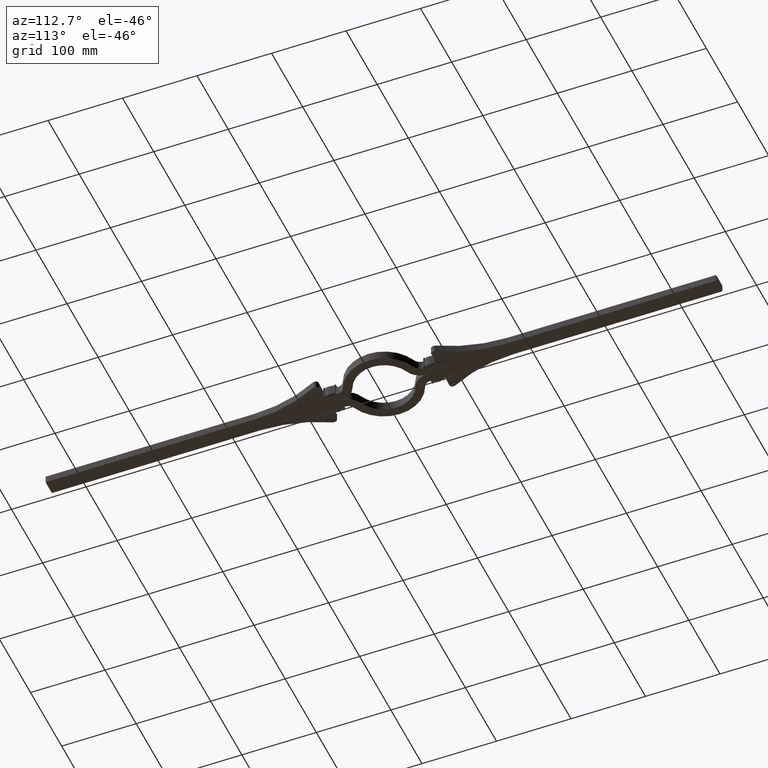
[diagram: clean part render]
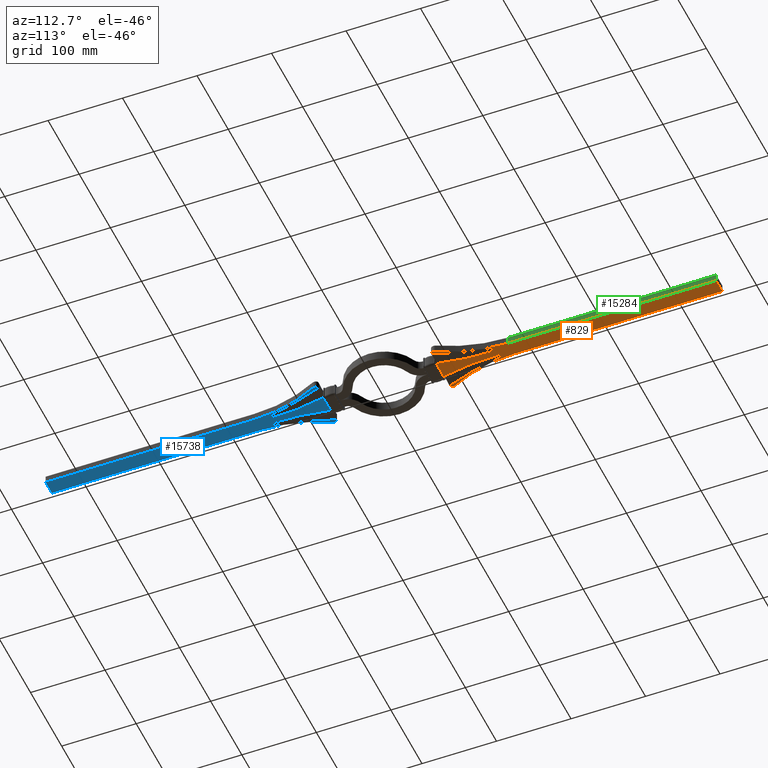
[diagram: same view with three faces highlighted in distinct colors, each labeled with its STEP entity id]
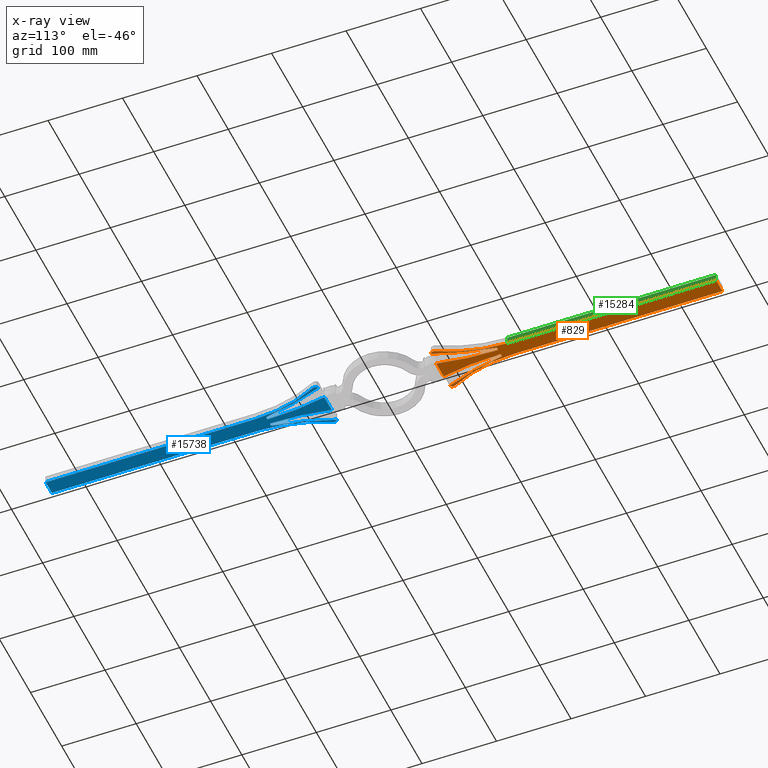
[diagram: x-ray of the same camera — body ghosted, the three highlighted faces saturated]
A machine part, auxiliary view with three faces highlighted in distinct colors.
The next image is the same camera in x-ray (body ghosted, the three faces saturated) — at least one of them is partly hidden behind the body in this view.
Their STEP definitions:

[orange] entity #829 — the highlighted planar face has unit normal (-0, 0, -1).
#43 = EDGE_CURVE ( 'NONE', #9369, #14784, #4226, .T. ) ;
#99 = B_SPLINE_CURVE_WITH_KNOTS ( 'NONE', 3,
 ( #22680, #9443, #13227, #1965, #3835, #2130, #15191, #5721, #18908, #4258, #21219, #15602, #23083, #523, #10002, #4175, #17251, #8034, #19235, #11895, #9921, #286, #4338, #11741, #5977, #7958, #15447, #21135, #7873, #608, #19154, #11820, #22927, #2524, #13705, #2287, #17339 ),
 .UNSPECIFIED., .F., .F.,
 ( 4, 1, 1, 2, 2, 1, 1, 2, 2, 1, 1, 2, 2, 1, 2, 2, 2, 2, 1, 1, 2, 2, 4 ),
 ( 0.000000000000000000, 0.1249999999999968359, 0.1562499999999963640, 0.1640624999999959754, 0.1718749999999955869, 0.1874999999999942824, 0.2187499999999916733, 0.2343749999999897304, 0.2499999999999878431, 0.3124999999999844569, 0.3437499999999832911, 0.3593749999999827360, 0.3749999999999821809, 0.4374999999999900080, 0.4687499999999939493, 0.4999999999999978906, 0.5625000000000202061, 0.6250000000000422995, 0.6875000000000645040, 0.7187500000000763833, 0.7343750000000823785, 0.7500000000000882627, 1.000000000000000000 ),
 .UNSPECIFIED. ) ;
#161 = CARTESIAN_POINT ( 'NONE',  ( 7.040899818233783414, 154.9950052233772908, -5.000000000000000888 ) ) ;
#238 = CARTESIAN_POINT ( 'NONE',  ( 4.892755534377799975, 154.9768825606714131, -5.000000000000000000 ) ) ;
#239 = CARTESIAN_POINT ( 'NONE',  ( 7.576437800769569186, 154.9272596164399829, -5.000000000000000000 ) ) ;
#286 = CARTESIAN_POINT ( 'NONE',  ( -7.708952536469569239, 154.8837657022506846, -4.999999999999999112 ) ) ;
#304 = CARTESIAN_POINT ( 'NONE',  ( -5.524881609996840304, 155.0000000000000000, -5.000000000000000000 ) ) ;
#364 = EDGE_CURVE ( 'NONE', #15178, #13784, #7526, .T. ) ;
#404 = CARTESIAN_POINT ( 'NONE',  ( 7.750923387391965846, 154.8668430428191698, -4.999999999999999112 ) ) ;
#405 = CARTESIAN_POINT ( 'NONE',  ( 21.90836770854217264, 97.96535711074012909, -4.999999999999999112 ) ) ;
#476 = CARTESIAN_POINT ( 'NONE',  ( 3.950210554126884155, 154.4160855845792071, -4.999999999999999112 ) ) ;
#483 = CARTESIAN_POINT ( 'NONE',  ( 15.33893144924324581, 120.7736479703853973, -5.000000000000000000 ) ) ;
#494 = CARTESIAN_POINT ( 'NONE',  ( 9.999999999999998224, 450.0000000000000000, -5.000000000000000000 ) ) ;
#523 = CARTESIAN_POINT ( 'NONE',  ( -7.307366801111482069, 154.9765360763337867, -4.999999999999999112 ) ) ;
#608 = CARTESIAN_POINT ( 'NONE',  ( -8.089659345965188209, 154.6100510210172558, -5.000000000000000000 ) ) ;
#767 = EDGE_CURVE ( 'NONE', #23644, #3494, #99, .T. ) ;
#829 = ADVANCED_FACE ( 'NONE', ( #5098 ), #4417, .T. ) ;
#903 = CARTESIAN_POINT ( 'NONE',  ( -3.887158504766637712, 154.2334561765726164, -5.000000000000000888 ) ) ;
#986 = VECTOR ( 'NONE', #9973, 1000.000000000000000 ) ;
#990 = CARTESIAN_POINT ( 'NONE',  ( -4.923330507334865658, 154.9795228441532799, -5.000000000000000000 ) ) ;
#1153 = CARTESIAN_POINT ( 'NONE',  ( -4.373972640302226544, 154.8467176374575729, -4.999999999999999112 ) ) ;
#1202 = CARTESIAN_POINT ( 'NONE',  ( -9.672070074790740435, 147.3002641839133844, -5.000000000000004441 ) ) ;
#1234 = CARTESIAN_POINT ( 'NONE',  ( -4.489648340402005111, 154.8953516681904432, -5.000000000000000888 ) ) ;
#1317 = CARTESIAN_POINT ( 'NONE',  ( 196.2500000000003695, 170.0000000000000000, -5.000000000000000000 ) ) ;
#1394 = DIRECTION ( 'NONE',  ( 0.000000000000000000, 0.000000000000000000, 1.000000000000000000 ) ) ;
#1549 = VERTEX_POINT ( 'NONE', #7709 ) ;
#1689 = CARTESIAN_POINT ( 'NONE',  ( -4.066255453019092414, 140.6514932845108490, -5.000000000000000000 ) ) ;
#1965 = CARTESIAN_POINT ( 'NONE',  ( -7.040710738677680602, 154.9950089992586015, -4.999999999999999112 ) ) ;
#2043 = ORIENTED_EDGE ( 'NONE', *, *, #43, .F. ) ;
#2072 = CARTESIAN_POINT ( 'NONE',  ( 4.291517554339579377, 154.8085952374379985, -5.000000000000000000 ) ) ;
#2130 = CARTESIAN_POINT ( 'NONE',  ( -7.072717474823241091, 154.9936684795427198, -4.999999999999999112 ) ) ;
#2159 = CARTESIAN_POINT ( 'NONE',  ( 5.401662129824939207, 155.0000000000001421, -4.999999999999999112 ) ) ;
#2165 = CARTESIAN_POINT ( 'NONE',  ( 7.929550128683751531, 154.7640946517927318, -5.000000000000000000 ) ) ;
#2225 = CARTESIAN_POINT ( 'NONE',  ( 29.90578352800346096, 75.61682699219079495, -4.999999999999999112 ) ) ;
#2239 = CARTESIAN_POINT ( 'NONE',  ( 4.697303896635835585, 154.9480590363553461, -5.000000000000000000 ) ) ;
#2242 = CARTESIAN_POINT ( 'NONE',  ( 8.190079004866349877, 154.4603655763447421, -4.999999999999998224 ) ) ;
#2285 = ORIENTED_EDGE ( 'NONE', *, *, #21810, .T. ) ;
#2287 = CARTESIAN_POINT ( 'NONE',  ( -8.331045514131831808, 154.1555962923812899, -4.999999999999999112 ) ) ;
#2322 = CARTESIAN_POINT ( 'NONE',  ( 8.132525867774781148, 154.5523416721544834, -5.000000000000000000 ) ) ;
#2375 = EDGE_CURVE ( 'NONE', #8821, #5946, #7974, .T. ) ;
#2400 = CARTESIAN_POINT ( 'NONE',  ( 3.887841840071709854, 154.2328798549666544, -5.000000000000000000 ) ) ;
#2524 = CARTESIAN_POINT ( 'NONE',  ( -8.177099160317748527, 154.4823493684897358, -4.999999999999999112 ) ) ;
#2609 = DIRECTION ( 'NONE',  ( -1.000000000000000000, 0.000000000000000000, 0.000000000000000000 ) ) ;
#2797 = CARTESIAN_POINT ( 'NONE',  ( -3.950894594920300484, 154.4156030487170312, -5.000000000000000888 ) ) ;
#2823 = B_SPLINE_CURVE_WITH_KNOTS ( 'NONE', 3,
 ( #13070, #6817, #7480, #21883, #3115, #14804, #3523, #24276, #5809, #15111, #9840, #21224, #1202, #21785 ),
 .UNSPECIFIED., .F., .F.,
 ( 4, 2, 2, 2, 2, 2, 4 ),
 ( 0.0006630706660943519633, 0.01083704939437183344, 0.02101102812264931535, 0.04135898557920428265, 0.05153296430748174894, 0.06170694303575920830, 0.08205490049231420335 ),
 .UNSPECIFIED. ) ;
#3001 = ORIENTED_EDGE ( 'NONE', *, *, #22093, .F. ) ;
#3043 = ORIENTED_EDGE ( 'NONE', *, *, #19518, .F. ) ;
#3115 = CARTESIAN_POINT ( 'NONE',  ( -24.05351161474452226, 91.52952734822630987, -5.000000000000000000 ) ) ;
#3494 = VERTEX_POINT ( 'NONE', #5953 ) ;
#3523 = CARTESIAN_POINT ( 'NONE',  ( -18.84312696506621521, 107.6664397898857430, -5.000000000000001776 ) ) ;
#3689 = CARTESIAN_POINT ( 'NONE',  ( 5.095105768261104728, 120.8115987610864011, -4.999999999999999112 ) ) ;
#3744 = EDGE_LOOP ( 'NONE', ( #3043, #23509, #20680, #21716, #4333, #17308, #2285, #22861, #21714, #9871, #3001, #10290, #17573, #2043, #10226, #7892, #23810, #16181, #8507, #23801 ) ) ;
#3755 = EDGE_CURVE ( 'NONE', #14716, #3494, #2823, .T. ) ;
#3835 = CARTESIAN_POINT ( 'NONE',  ( -7.063657707383821815, 154.9940581115708653, -5.000000000000000000 ) ) ;
#3863 = CARTESIAN_POINT ( 'NONE',  ( 10.65409518942570344, 81.48561295397708193, -4.999999999999999112 ) ) ;
#3869 = CARTESIAN_POINT ( 'NONE',  ( 8.350559475307663959, 154.0555712443143932, -5.000000000000000888 ) ) ;
#3913 = DIRECTION ( 'NONE',  ( -1.362997016838919825E-16, -1.000000000000000000, 0.000000000000000000 ) ) ;
#3941 = DIRECTION ( 'NONE',  ( -1.000000000000000000, 0.000000000000000000, 0.000000000000000000 ) ) ;
#3942 = LINE ( 'NONE', #5390, #15759 ) ;
#3959 = CARTESIAN_POINT ( 'NONE',  ( 7.306898842722150178, 154.9761397729472492, -5.000000000000000000 ) ) ;
#4037 = CARTESIAN_POINT ( 'NONE',  ( 4.534892171477465261, 154.9098943820313536, -5.000000000000000000 ) ) ;
#4040 = CARTESIAN_POINT ( 'NONE',  ( 7.072893912738012823, 154.9936636895074287, -5.000000000000000888 ) ) ;
#4175 = CARTESIAN_POINT ( 'NONE',  ( -7.457000456572593805, 154.9543196795643780, -4.999999999999999112 ) ) ;
#4207 = CARTESIAN_POINT ( 'NONE',  ( 4.977114643288120810, 154.9841644563494185, -4.999999999999998224 ) ) ;
#4213 = CARTESIAN_POINT ( 'NONE',  ( 7.611289036946746300, 154.9177036749475462, -5.000000000000000000 ) ) ;
#4214 = CARTESIAN_POINT ( 'NONE',  ( 16.17173924047758149, 117.4858902119328405, -4.999999999999998224 ) ) ;
#4226 = LINE ( 'NONE', #494, #986 ) ;
#4258 = CARTESIAN_POINT ( 'NONE',  ( -7.179975064563933529, 154.9877161332718458, -4.999999999999999112 ) ) ;
#4290 = CARTESIAN_POINT ( 'NONE',  ( 4.950226401179041780, 154.9819418975789063, -4.999999999999999112 ) ) ;
#4296 = CARTESIAN_POINT ( 'NONE',  ( 8.369846276100519233, 153.9566048082363068, -5.000000000000008882 ) ) ;
#4313 = CARTESIAN_POINT ( 'NONE',  ( -27.50000000000000000, 75.00000000000000000, -5.000000000000000000 ) ) ;
#4333 = ORIENTED_EDGE ( 'NONE', *, *, #19108, .F. ) ;
#4338 = CARTESIAN_POINT ( 'NONE',  ( -7.749808035746163171, 154.8665676258486599, -5.000000000000000888 ) ) ;
#4417 = PLANE ( 'NONE',  #9499 ) ;
#4689 = CARTESIAN_POINT ( 'NONE',  ( -4.361279476627038854, 154.8405941119106615, -5.000000000000000000 ) ) ;
#4695 = CARTESIAN_POINT ( 'NONE',  ( -3.850100905404020502, 153.8959823417442863, -5.000000000000000888 ) ) ;
#4852 = CARTESIAN_POINT ( 'NONE',  ( -3.849387639408194062, 153.9453619701153286, -4.999999999999999112 ) ) ;
#4858 = CARTESIAN_POINT ( 'NONE',  ( 0.04999999999999449329, 75.00000000000000000, -5.000000000000000000 ) ) ;
#4938 = CARTESIAN_POINT ( 'NONE',  ( 31.91176470588233371, 82.35294117647066514, -5.000000000000000000 ) ) ;
#5098 = FACE_OUTER_BOUND ( 'NONE', #3744, .T. ) ;
#5110 = CARTESIAN_POINT ( 'NONE',  ( -29.90578352800347162, 75.61682699219078074, -5.000000000000000888 ) ) ;
#5338 = DIRECTION ( 'NONE',  ( 1.000000000000000000, 0.000000000000000000, 0.000000000000000000 ) ) ;
#5390 = CARTESIAN_POINT ( 'NONE',  ( -9.999999999999998224, 450.0000000000000000, -5.000000000000000000 ) ) ;
#5536 = CARTESIAN_POINT ( 'NONE',  ( -6.383709020612283069, 107.6285635025731722, -5.000000000000001776 ) ) ;
#5563 = EDGE_CURVE ( 'NONE', #8209, #5946, #16077, .T. ) ;
#5615 = CARTESIAN_POINT ( 'NONE',  ( -10.65418433786297570, 81.48515731125172579, -5.000000000000000888 ) ) ;
#5721 = CARTESIAN_POINT ( 'NONE',  ( -7.097308017255702595, 154.9925326577647979, -5.000000000000000000 ) ) ;
#5754 = CARTESIAN_POINT ( 'NONE',  ( 7.871353795394450792, 154.8018180168101878, -5.000000000000000000 ) ) ;
#5765 = CARTESIAN_POINT ( 'NONE',  ( -3.941527048187003057, 147.2738071475867798, -5.000000000000000000 ) ) ;
#5809 = CARTESIAN_POINT ( 'NONE',  ( -15.33948274099760312, 120.7713924187462169, -4.999999999999999112 ) ) ;
#5841 = CARTESIAN_POINT ( 'NONE',  ( 4.961300469331250795, 154.9828828458228429, -5.000000000000000000 ) ) ;
#5845 = CARTESIAN_POINT ( 'NONE',  ( 7.425242568076760641, 154.9605887789916494, -4.999999999999999112 ) ) ;
#5946 = VERTEX_POINT ( 'NONE', #4858 ) ;
#5953 = CARTESIAN_POINT ( 'NONE',  ( -8.369848107278119898, 153.9566044169022803, -5.000000000001072031 ) ) ;
#5977 = CARTESIAN_POINT ( 'NONE',  ( -7.831067647579728508, 154.8267907529933041, -4.999999999999999112 ) ) ;
#6005 = CARTESIAN_POINT ( 'NONE',  ( 4.954640374059568586, 154.9823200777343857, -5.000000000000001776 ) ) ;
#6009 = CARTESIAN_POINT ( 'NONE',  ( 7.079084775424544951, 154.9933880636783101, -5.000000000000000000 ) ) ;
#6041 = VECTOR ( 'NONE', #7680, 1000.000000000000000 ) ;
#6084 = CARTESIAN_POINT ( 'NONE',  ( 4.424823562497149254, 154.8692188332266255, -5.000000000000000000 ) ) ;
#6089 = CARTESIAN_POINT ( 'NONE',  ( 25.16573548742239552, 88.32679024580768612, -5.000000000000001776 ) ) ;
#6161 = CARTESIAN_POINT ( 'NONE',  ( 3.941525041940246776, 147.2739525226938611, -5.000000000000005329 ) ) ;
#6170 = CARTESIAN_POINT ( 'NONE',  ( 29.90578352800346096, 75.61682699219079495, -4.999999999999999112 ) ) ;
#6297 = CARTESIAN_POINT ( 'NONE',  ( -196.2500000000003695, 170.0000000000000000, -5.000000000000000000 ) ) ;
#6320 = B_SPLINE_CURVE_WITH_KNOTS ( 'NONE', 3,
 ( #11539, #3869, #15223, #13585, #7913, #21004, #17041, #2242, #9798, #2322, #22962, #11697, #7989, #2165, #5754, #15478, #21173, #404, #17286, #4213, #239, #19113, #17123, #7827, #5845, #9874, #3959, #9719, #19026, #23043, #17375, #13501, #6009, #4040, #22882, #161, #11455, #15316, #13332 ),
 .UNSPECIFIED., .F., .F.,
 ( 4, 1, 1, 1, 2, 2, 2, 2, 1, 2, 2, 1, 1, 2, 2, 1, 1, 2, 2, 1, 2, 2, 1, 1, 4 ),
 ( 0.000000000000000000, 0.1249999999999778788, 0.1874999999999664158, 0.2187499999999601430, 0.2343749999999390765, 0.2499999999999179823, 0.3124999999998947509, 0.3749999999998714917, 0.4374999999998481770, 0.4687499999998375744, 0.4999999999998269162, 0.5624999999998212541, 0.5937499999998191447, 0.6093749999998235856, 0.6249999999998280265, 0.6874999999998651079, 0.7187499999998865352, 0.7343749999998945288, 0.7499999999999025224, 0.8124999999999230615, 0.8281249999999293898, 0.8359374999999326095, 0.8437499999999357181, 0.8749999999999480416, 1.000000000000000000 ),
 .UNSPECIFIED. ) ;
#6461 = EDGE_CURVE ( 'NONE', #14784, #10589, #3942, .T. ) ;
#6574 = CARTESIAN_POINT ( 'NONE',  ( -3.852224591100758655, 154.0183417871604661, -5.000000000000000000 ) ) ;
#6746 = CARTESIAN_POINT ( 'NONE',  ( -4.701792468876149655, 154.9495630242740845, -4.999999999999999112 ) ) ;
#6817 = CARTESIAN_POINT ( 'NONE',  ( -28.66465570946260399, 78.77288482228303224, -4.999999999999997335 ) ) ;
#6829 = CARTESIAN_POINT ( 'NONE',  ( -4.306078688689413347, 154.8116730214752010, -5.000000000000000888 ) ) ;
#6835 = VERTEX_POINT ( 'NONE', #2225 ) ;
#6877 = AXIS2_PLACEMENT_3D ( 'NONE', #21181, #22889, #7838 ) ;
#7354 = EDGE_CURVE ( 'NONE', #10589, #10451, #23981, .T. ) ;
#7357 = CARTESIAN_POINT ( 'NONE',  ( -9.435335345138769370, 87.99476971494958377, -5.000000000000000888 ) ) ;
#7476 = CARTESIAN_POINT ( 'NONE',  ( -196.2500000000003695, 154.9999999999999716, -5.000000000000000000 ) ) ;
#7480 = CARTESIAN_POINT ( 'NONE',  ( -27.47195298213860681, 81.94771300081052345, -5.000000000000003553 ) ) ;
#7514 = CARTESIAN_POINT ( 'NONE',  ( -8.866273401780516039, 91.25713509913484245, -4.999999999999997335 ) ) ;
#7526 = B_SPLINE_CURVE_WITH_KNOTS ( 'NONE', 3,
 ( #7985, #2159, #17120, #11695, #11768, #4207, #5841, #6005, #4290, #13582, #238, #13414, #9870, #2239, #15399, #18942, #19186, #19110, #4037, #21084, #6084, #17442, #7659, #2072, #15312, #21169, #23039, #11537, #11450, #476, #13655, #7740, #2400, #20829, #19022, #9549, #15556 ),
 .UNSPECIFIED., .F., .F.,
 ( 4, 1, 1, 1, 1, 1, 2, 2, 1, 1, 1, 2, 2, 1, 1, 2, 2, 1, 1, 2, 2, 1, 2, 2, 4 ),
 ( 0.000000000000000000, 0.1249999999999064915, 0.1874999999998597233, 0.2187499999998352151, 0.2343749999998220868, 0.2421874999998155364, 0.2460937499998129829, 0.2499999999998104572, 0.3124999999998064326, 0.3437499999998044342, 0.3593749999998067102, 0.3671874999998078759, 0.3749999999998089861, 0.4374999999998064326, 0.4687499999997991051, 0.4843749999997954969, 0.4999999999997918332, 0.6249999999997818412, 0.6874999999997764011, 0.7187499999997885025, 0.7499999999998006039, 0.8124999999998239186, 0.8437499999998354649, 0.8749999999998469002, 1.000000000000000000 ),
 .UNSPECIFIED. ) ;
#7618 = CARTESIAN_POINT ( 'NONE',  ( -9.999999999999998224, 450.0000000000000000, -5.000000000000000000 ) ) ;
#7659 = CARTESIAN_POINT ( 'NONE',  ( 4.394963218379221992, 154.8564157422302685, -5.000000000000000888 ) ) ;
#7680 = DIRECTION ( 'NONE',  ( 1.000000000000000000, 0.000000000000000000, 0.000000000000000000 ) ) ;
#7693 = CARTESIAN_POINT ( 'NONE',  ( 3.850103109058593098, 153.8959823276776433, -5.000000000014686918 ) ) ;
#7709 = CARTESIAN_POINT ( 'NONE',  ( -11.99556631910429694, 74.99999999999995737, -4.999999999999997335 ) ) ;
#7740 = CARTESIAN_POINT ( 'NONE',  ( 3.900880505724209080, 154.2806662280909222, -5.000000000000001776 ) ) ;
#7827 = CARTESIAN_POINT ( 'NONE',  ( 7.489098946799971124, 154.9483752531161826, -5.000000000000001776 ) ) ;
#7838 = DIRECTION ( 'NONE',  ( 1.000000000000000000, 0.000000000000000000, 0.000000000000000000 ) ) ;
#7841 = EDGE_CURVE ( 'NONE', #18963, #14716, #16891, .T. ) ;
#7873 = CARTESIAN_POINT ( 'NONE',  ( -8.044891118720279621, 154.6599510496792789, -5.000000000000000000 ) ) ;
#7892 = ORIENTED_EDGE ( 'NONE', *, *, #22830, .F. ) ;
#7913 = CARTESIAN_POINT ( 'NONE',  ( 8.219940837847360626, 154.4060487012270357, -4.999999999999999112 ) ) ;
#7958 = CARTESIAN_POINT ( 'NONE',  ( -7.870881565983294692, 154.8031225917745530, -5.000000000000000000 ) ) ;
#7974 = LINE ( 'NONE', #11200, #11521 ) ;
#7985 = CARTESIAN_POINT ( 'NONE',  ( 5.524884413910802650, 155.0000000000000000, -5.000000000000000000 ) ) ;
#7989 = CARTESIAN_POINT ( 'NONE',  ( 7.982266187990555650, 154.7204992681236320, -5.000000000000000000 ) ) ;
#8034 = CARTESIAN_POINT ( 'NONE',  ( -7.509167489440847554, 154.9436147647253108, -5.000000000000000888 ) ) ;
#8068 = CARTESIAN_POINT ( 'NONE',  ( 24.05310280816991053, 91.53070942115883213, -4.999999999999999112 ) ) ;
#8209 = VERTEX_POINT ( 'NONE', #16701 ) ;
#8211 = B_SPLINE_CURVE_WITH_KNOTS ( 'NONE', 3,
 ( #20081, #4852, #6574, #16236, #23859, #12260, #903, #8648, #18183, #2797, #21732, #15974, #14150, #12499, #6829, #10539, #4689, #1153, #18098, #1234, #20000, #8483, #21647, #21971, #14396, #6746, #10448, #21896, #12425, #990, #23704, #10619, #23628, #10370, #23534, #19844 ),
 .UNSPECIFIED., .F., .F.,
 ( 4, 1, 2, 2, 1, 2, 2, 1, 1, 1, 2, 2, 1, 1, 1, 2, 2, 1, 1, 1, 1, 2, 2, 4 ),
 ( 0.000000000000000000, 0.06250000000000716094, 0.09375000000001071365, 0.1250000000000142664, 0.1875000000000213718, 0.2187500000000249245, 0.2500000000000284772, 0.3750000000000426881, 0.4375000000000371925, 0.4687500000000244249, 0.4843750000000180966, 0.5000000000000116573, 0.5625000000000002220, 0.5937499999999996669, 0.6093750000000042188, 0.6171875000000104361, 0.6250000000000166533, 0.6875000000000182077, 0.7187500000000170974, 0.7343750000000150990, 0.7421875000000129896, 0.7460937500000124345, 0.7500000000000118794, 1.000000000000000000 ),
 .UNSPECIFIED. ) ;
#8483 = CARTESIAN_POINT ( 'NONE',  ( -4.615485542775151551, 154.9305361709761826, -4.999999999999999112 ) ) ;
#8507 = ORIENTED_EDGE ( 'NONE', *, *, #23652, .T. ) ;
#8648 = CARTESIAN_POINT ( 'NONE',  ( -3.906718705263800384, 154.3051456392302327, -4.999999999999999112 ) ) ;
#8821 = VERTEX_POINT ( 'NONE', #9427 ) ;
#8864 = VERTEX_POINT ( 'NONE', #4695 ) ;
#9350 = CARTESIAN_POINT ( 'NONE',  ( 10.00000000000003730, 169.9999999999999716, -5.000000000000000000 ) ) ;
#9369 = VERTEX_POINT ( 'NONE', #9350 ) ;
#9427 = CARTESIAN_POINT ( 'NONE',  ( 11.99556631910429338, 74.99999999999998579, -4.999999999999999112 ) ) ;
#9443 = CARTESIAN_POINT ( 'NONE',  ( -6.816542032269317986, 155.0000000000000853, -4.999999999999998224 ) ) ;
#9499 = AXIS2_PLACEMENT_3D ( 'NONE', #6297, #23326, #12052 ) ;
#9549 = CARTESIAN_POINT ( 'NONE',  ( 3.848712076518045588, 153.9947300474512986, -5.000000000000000000 ) ) ;
#9628 = CARTESIAN_POINT ( 'NONE',  ( 3.850103109058593098, 153.8959823276776433, -5.000000000014686918 ) ) ;
#9719 = CARTESIAN_POINT ( 'NONE',  ( 7.282159346196274363, 154.9788182286728784, -5.000000000000000000 ) ) ;
#9790 = CARTESIAN_POINT ( 'NONE',  ( 4.066234519047399409, 140.6522609387502882, -4.999999999999999112 ) ) ;
#9798 = CARTESIAN_POINT ( 'NONE',  ( 8.159022788575056140, 154.5130916506290077, -5.000000000000000000 ) ) ;
#9799 = CARTESIAN_POINT ( 'NONE',  ( 17.95218768660829056, 110.9412039952580500, -5.000000000000000888 ) ) ;
#9840 = CARTESIAN_POINT ( 'NONE',  ( -13.04686545112673990, 130.6835287712365812, -5.000000000000006217 ) ) ;
#9870 = CARTESIAN_POINT ( 'NONE',  ( 4.736075384499168983, 154.9552602184181467, -4.999999999999999112 ) ) ;
#9871 = ORIENTED_EDGE ( 'NONE', *, *, #7841, .F. ) ;
#9874 = CARTESIAN_POINT ( 'NONE',  ( 7.343489981968272851, 154.9719131814239859, -5.000000000000000888 ) ) ;
#9921 = CARTESIAN_POINT ( 'NONE',  ( -7.645866024125226978, 154.9080606686533770, -5.000000000000000888 ) ) ;
#9973 = DIRECTION ( 'NONE',  ( -1.362997016838919825E-16, 1.000000000000000000, -0.000000000000000000 ) ) ;
#10002 = CARTESIAN_POINT ( 'NONE',  ( -7.379812184047170653, 154.9676398535170279, -4.999999999999999112 ) ) ;
#10226 = ORIENTED_EDGE ( 'NONE', *, *, #17571, .F. ) ;
#10290 = ORIENTED_EDGE ( 'NONE', *, *, #7354, .F. ) ;
#10370 = CARTESIAN_POINT ( 'NONE',  ( -5.086463813540461842, 154.9938781205851228, -5.000000000000000888 ) ) ;
#10448 = CARTESIAN_POINT ( 'NONE',  ( -4.769171599191096789, 154.9614452236558577, -4.999999999999999112 ) ) ;
#10451 = VERTEX_POINT ( 'NONE', #18017 ) ;
#10539 = CARTESIAN_POINT ( 'NONE',  ( -4.338980454192871150, 154.8292424760705899, -5.000000000000000000 ) ) ;
#10589 = VERTEX_POINT ( 'NONE', #22047 ) ;
#10619 = CARTESIAN_POINT ( 'NONE',  ( -4.939930174933718554, 154.9810436870729120, -5.000000000000001776 ) ) ;
#10852 = DIRECTION ( 'NONE',  ( -1.000000000000000000, 1.224646799147353207E-16, 0.000000000000000000 ) ) ;
#11131 = CARTESIAN_POINT ( 'NONE',  ( 6.383646118891760146, 107.6290770696313928, -5.000000000000000000 ) ) ;
#11200 = CARTESIAN_POINT ( 'NONE',  ( -196.2500000000003695, 75.00000000000000000, -5.000000000000000000 ) ) ;
#11206 = CARTESIAN_POINT ( 'NONE',  ( 11.30261319452706203, 78.23812444994119630, -5.000000000000000000 ) ) ;
#11450 = CARTESIAN_POINT ( 'NONE',  ( 3.982025414339872338, 154.4782374288043627, -4.999999999999999112 ) ) ;
#11455 = CARTESIAN_POINT ( 'NONE',  ( 6.938287923075308505, 154.9985145645732700, -5.000000000000000000 ) ) ;
#11521 = VECTOR ( 'NONE', #3941, 1000.000000000000000 ) ;
#11537 = CARTESIAN_POINT ( 'NONE',  ( 3.994846812575005401, 154.5011420639815185, -4.999999999999999112 ) ) ;
#11539 = CARTESIAN_POINT ( 'NONE',  ( 8.369846276100519233, 153.9566048082363068, -5.000000000000008882 ) ) ;
#11543 = CIRCLE ( 'NONE', #21886, 186.2500000000003126 ) ;
#11621 = CARTESIAN_POINT ( 'NONE',  ( 10.94604281159742598, 140.6385494445007396, -5.000000000000047962 ) ) ;
#11695 = CARTESIAN_POINT ( 'NONE',  ( 5.079670333403198512, 154.9909716991470248, -5.000000000000000888 ) ) ;
#11697 = CARTESIAN_POINT ( 'NONE',  ( 8.047682912415172751, 154.6571525177632509, -5.000000000000000000 ) ) ;
#11701 = CARTESIAN_POINT ( 'NONE',  ( 20.87496697803197065, 101.1957694271446542, -4.999999999999998224 ) ) ;
#11705 = CIRCLE ( 'NONE', #17409, 186.2500000000003126 ) ;
#11741 = CARTESIAN_POINT ( 'NONE',  ( -7.767756583600059272, 154.8584057253728474, -4.999999999999999112 ) ) ;
#11768 = CARTESIAN_POINT ( 'NONE',  ( 5.009838797826586365, 154.9866016173510559, -4.999999999999999112 ) ) ;
#11820 = CARTESIAN_POINT ( 'NONE',  ( -8.157103106869030285, 154.5143419207929014, -5.000000000000000888 ) ) ;
#11845 = CARTESIAN_POINT ( 'NONE',  ( 4.474168272099457333, 130.7263188611593137, -5.000000000000000000 ) ) ;
#11895 = CARTESIAN_POINT ( 'NONE',  ( -7.577369721492570598, 154.9278491904553903, -4.999999999999999112 ) ) ;
#12052 = DIRECTION ( 'NONE',  ( -1.000000000000000000, 0.000000000000000000, 0.000000000000000000 ) ) ;
#12260 = CARTESIAN_POINT ( 'NONE',  ( -3.871683794444002125, 154.1585814098176286, -5.000000000000000000 ) ) ;
#12425 = CARTESIAN_POINT ( 'NONE',  ( -4.900359624242875967, 154.9772935766483215, -4.999999999999998224 ) ) ;
#12499 = CARTESIAN_POINT ( 'NONE',  ( -4.233135279549705920, 154.7668836215720205, -4.999999999999999112 ) ) ;
#12834 = DIRECTION ( 'NONE',  ( -0.000000000000000000, -0.000000000000000000, -1.000000000000000000 ) ) ;
#12885 = DIRECTION ( 'NONE',  ( -1.000000000000000000, -0.000000000000000000, -0.000000000000000000 ) ) ;
#12905 = DIRECTION ( 'NONE',  ( -1.000000000000000000, 0.000000000000000000, 0.000000000000000000 ) ) ;
#13001 = CARTESIAN_POINT ( 'NONE',  ( 9.999999999999998224, 450.0000000000000000, -5.000000000000000000 ) ) ;
#13070 = CARTESIAN_POINT ( 'NONE',  ( -29.90578352800347162, 75.61682699219078074, -5.000000000000000888 ) ) ;
#13106 = CARTESIAN_POINT ( 'NONE',  ( -5.372424258462072721, 117.5107943336468423, -5.000000000000000888 ) ) ;
#13227 = CARTESIAN_POINT ( 'NONE',  ( -6.938084917852560984, 154.9985156875119685, -4.999999999999998224 ) ) ;
#13332 = CARTESIAN_POINT ( 'NONE',  ( 6.704089015590497524, 155.0000000000000000, -5.000000000000000000 ) ) ;
#13414 = CARTESIAN_POINT ( 'NONE',  ( 4.817166454814000076, 154.9682276090294692, -5.000000000000001776 ) ) ;
#13501 = CARTESIAN_POINT ( 'NONE',  ( 7.097544625508486860, 154.9925235955159337, -5.000000000000000888 ) ) ;
#13502 = CARTESIAN_POINT ( 'NONE',  ( 13.04663163384346802, 130.6846088319114756, -5.000000000000047962 ) ) ;
#13535 = CARTESIAN_POINT ( 'NONE',  ( 5.524884413910802650, 155.0000000000000000, -5.000000000000000000 ) ) ;
#13582 = CARTESIAN_POINT ( 'NONE',  ( 4.949170066116401756, 154.9818515061917310, -4.999999999999999112 ) ) ;
#13585 = CARTESIAN_POINT ( 'NONE',  ( 8.253457608034054260, 154.3382894517226305, -5.000000000000000000 ) ) ;
#13616 = CARTESIAN_POINT ( 'NONE',  ( -27.50000000000000000, 75.00000000000000000, -5.000000000000000000 ) ) ;
#13655 = CARTESIAN_POINT ( 'NONE',  ( 3.922481314491955473, 154.3507578352003122, -4.999999999999999112 ) ) ;
#13705 = CARTESIAN_POINT ( 'NONE',  ( -8.268579576320172819, 154.3278125196068515, -4.999999999999999112 ) ) ;
#13784 = VERTEX_POINT ( 'NONE', #7693 ) ;
#13866 = LINE ( 'NONE', #13616, #21535 ) ;
#14150 = CARTESIAN_POINT ( 'NONE',  ( -4.102557969409706295, 154.6621287983768980, -5.000000000000000000 ) ) ;
#14396 = CARTESIAN_POINT ( 'NONE',  ( -4.654509030609471409, 154.9394402328784395, -5.000000000000000888 ) ) ;
#14716 = VERTEX_POINT ( 'NONE', #5110 ) ;
#14784 = VERTEX_POINT ( 'NONE', #13001 ) ;
#14804 = CARTESIAN_POINT ( 'NONE',  ( -20.83678060167407509, 101.1802506365843044, -4.999999999999999112 ) ) ;
#14837 = CARTESIAN_POINT ( 'NONE',  ( -4.474201772049412718, 130.7256328951141313, -5.000000000000000888 ) ) ;
#14877 = VERTEX_POINT ( 'NONE', #304 ) ;
#14896 = CARTESIAN_POINT ( 'NONE',  ( 5.372386887638470832, 117.5112100777879220, -5.000000000000000000 ) ) ;
#14979 = CARTESIAN_POINT ( 'NONE',  ( 9.435256657635720856, 87.99521045099056948, -4.999999999999997335 ) ) ;
#15073 = CARTESIAN_POINT ( 'NONE',  ( -7.282119410401856285, 101.0639367899687073, -4.999999999999998224 ) ) ;
#15110 = VERTEX_POINT ( 'NONE', #20628 ) ;
#15111 = CARTESIAN_POINT ( 'NONE',  ( -13.77831728781949749, 127.3717739044653001, -5.000000000000000000 ) ) ;
#15136 = CARTESIAN_POINT ( 'NONE',  ( 11.99556631910429338, 74.99999999999998579, -4.999999999999999112 ) ) ;
#15178 = VERTEX_POINT ( 'NONE', #13535 ) ;
#15191 = CARTESIAN_POINT ( 'NONE',  ( -7.078893240523878028, 154.9933938590224045, -4.999999999999999112 ) ) ;
#15223 = CARTESIAN_POINT ( 'NONE',  ( 8.312822230249953037, 154.1940794741239529, -5.000000000000000000 ) ) ;
#15312 = CARTESIAN_POINT ( 'NONE',  ( 4.171047678966569805, 154.7275171252331063, -4.999999999999999112 ) ) ;
#15316 = CARTESIAN_POINT ( 'NONE',  ( 6.816671816221102631, 155.0000000000001137, -5.000000000000000888 ) ) ;
#15391 = LINE ( 'NONE', #7476, #16850 ) ;
#15399 = CARTESIAN_POINT ( 'NONE',  ( 4.681067697686012608, 154.9448190683089592, -5.000000000000000000 ) ) ;
#15404 = CARTESIAN_POINT ( 'NONE',  ( 13.77806456301670046, 127.3729176571731756, -4.999999999999999112 ) ) ;
#15447 = CARTESIAN_POINT ( 'NONE',  ( -7.945722487624670372, 154.7506032434060046, -5.000000000000000888 ) ) ;
#15478 = CARTESIAN_POINT ( 'NONE',  ( 7.831338401205473865, 154.8256620337881202, -5.000000000000000000 ) ) ;
#15481 = CARTESIAN_POINT ( 'NONE',  ( 18.89638313458630137, 107.6835423430793810, -5.000000000000001776 ) ) ;
#15556 = CARTESIAN_POINT ( 'NONE',  ( 3.850103109058593098, 153.8959823276776433, -5.000000000014686918 ) ) ;
#15602 = CARTESIAN_POINT ( 'NONE',  ( -7.234992529180952481, 154.9832922700047959, -5.000000000000001776 ) ) ;
#15759 = VECTOR ( 'NONE', #12885, 1000.000000000000000 ) ;
#15974 = CARTESIAN_POINT ( 'NONE',  ( -4.016879431814586177, 154.5463229098289162, -5.000000000000000000 ) ) ;
#16077 = LINE ( 'NONE', #4313, #6041 ) ;
#16181 = ORIENTED_EDGE ( 'NONE', *, *, #17359, .T. ) ;
#16236 = CARTESIAN_POINT ( 'NONE',  ( -3.860846577633067156, 154.0896860594281748, -5.000000000000000000 ) ) ;
#16701 = CARTESIAN_POINT ( 'NONE',  ( -0.04999999999999449329, 75.00000000000000000, -5.000000000000000000 ) ) ;
#16810 = CARTESIAN_POINT ( 'NONE',  ( -11.99556631910429694, 74.99999999999995737, -4.999999999999997335 ) ) ;
#16850 = VECTOR ( 'NONE', #16929, 1000.000000000000000 ) ;
#16875 = CARTESIAN_POINT ( 'NONE',  ( 4.647021768117753915, 127.4192935431086084, -4.999999999999998224 ) ) ;
#16891 = CIRCLE ( 'NONE', #6877, 5.000000000000007994 ) ;
#16929 = DIRECTION ( 'NONE',  ( -1.000000000000000000, -1.224646799147353207E-16, 0.000000000000000000 ) ) ;
#16971 = CARTESIAN_POINT ( 'NONE',  ( -11.30261090894888376, 78.23813513029791977, -5.000000000000001776 ) ) ;
#17041 = CARTESIAN_POINT ( 'NONE',  ( 8.194448244753486321, 154.4526891754441920, -4.999999999999999112 ) ) ;
#17051 = CARTESIAN_POINT ( 'NONE',  ( -3.850100905404020502, 153.8959823417442863, -5.000000000000000888 ) ) ;
#17082 = B_SPLINE_CURVE_WITH_KNOTS ( 'NONE', 3,
 ( #15136, #11206, #3863, #14979, #18941, #22397, #11131, #14896, #3689, #16875, #11845, #9790, #6161, #9628 ),
 .UNSPECIFIED., .F., .F.,
 ( 4, 2, 2, 2, 2, 2, 4 ),
 ( 0.000000000000000000, 0.009934312351862061019, 0.01986862470372412204, 0.03973724940744827877, 0.04967156175931036061, 0.05960587411117240081, 0.07947449881489648815 ),
 .UNSPECIFIED. ) ;
#17120 = CARTESIAN_POINT ( 'NONE',  ( 5.236866310554860959, 154.9976949019100232, -4.999999999999999112 ) ) ;
#17123 = CARTESIAN_POINT ( 'NONE',  ( 7.538858558784522934, 154.9368045953203534, -5.000000000000000888 ) ) ;
#17251 = CARTESIAN_POINT ( 'NONE',  ( -7.488510143176377198, 154.9479807662989970, -4.999999999999999112 ) ) ;
#17286 = CARTESIAN_POINT ( 'NONE',  ( 7.689420039589892397, 154.8927600434799103, -5.000000000000000000 ) ) ;
#17308 = ORIENTED_EDGE ( 'NONE', *, *, #17531, .T. ) ;
#17332 = AXIS2_PLACEMENT_3D ( 'NONE', #22129, #1394, #12905 ) ;
#17339 = CARTESIAN_POINT ( 'NONE',  ( -8.369848107278119898, 153.9566044169022803, -5.000000000001072031 ) ) ;
#17359 = EDGE_CURVE ( 'NONE', #23575, #15110, #6320, .T. ) ;
#17375 = CARTESIAN_POINT ( 'NONE',  ( 7.158215138088412033, 154.9894308716724538, -5.000000000000000000 ) ) ;
#17377 = CARTESIAN_POINT ( 'NONE',  ( 28.66460862937018916, 78.77300454201819946, -5.000000000000000000 ) ) ;
#17409 = AXIS2_PLACEMENT_3D ( 'NONE', #1317, #12834, #5338 ) ;
#17442 = CARTESIAN_POINT ( 'NONE',  ( 4.403886038634817091, 154.8603404236245353, -5.000000000000000000 ) ) ;
#17448 = CARTESIAN_POINT ( 'NONE',  ( 27.47184619622700197, 81.94799728813177353, -5.000000000000000888 ) ) ;
#17531 = EDGE_CURVE ( 'NONE', #8864, #14877, #8211, .T. ) ;
#17543 = VERTEX_POINT ( 'NONE', #4938 ) ;
#17571 = EDGE_CURVE ( 'NONE', #17543, #9369, #11705, .T. ) ;
#17573 = ORIENTED_EDGE ( 'NONE', *, *, #6461, .F. ) ;
#17660 = DIRECTION ( 'NONE',  ( -0.000000000000000000, -0.000000000000000000, -1.000000000000000000 ) ) ;
#18017 = CARTESIAN_POINT ( 'NONE',  ( -10.00000000000006395, 170.0000000000000284, -5.000000000000000000 ) ) ;
#18098 = CARTESIAN_POINT ( 'NONE',  ( -4.424735774836199731, 154.8701481847466255, -4.999999999999999112 ) ) ;
#18183 = CARTESIAN_POINT ( 'NONE',  ( -3.932407141022794761, 154.3720571457417634, -5.000000000000000000 ) ) ;
#18244 = CARTESIAN_POINT ( 'NONE',  ( -6.704073158307038760, 155.0000000000000000, -5.000000000000000000 ) ) ;
#18414 = CARTESIAN_POINT ( 'NONE',  ( 8.369846276100519233, 153.9566048082363068, -5.000000000000008882 ) ) ;
#18496 = CARTESIAN_POINT ( 'NONE',  ( -196.2500000000003695, 155.0000000000000284, -5.000000000000000000 ) ) ;
#18874 = CARTESIAN_POINT ( 'NONE',  ( -5.095152140477097191, 120.8110165528713082, -5.000000000000001776 ) ) ;
#18908 = CARTESIAN_POINT ( 'NONE',  ( -7.133621479544554944, 154.9906843207299971, -5.000000000000000000 ) ) ;
#18941 = CARTESIAN_POINT ( 'NONE',  ( 8.866194273977933804, 91.25759850007079876, -5.000000000000000000 ) ) ;
#18942 = CARTESIAN_POINT ( 'NONE',  ( 4.670328043495365122, 154.9426249235752664, -4.999999999999998224 ) ) ;
#18956 = CARTESIAN_POINT ( 'NONE',  ( -4.647065512257875675, 127.4185468660724609, -5.000000000000001776 ) ) ;
#18963 = VERTEX_POINT ( 'NONE', #21930 ) ;
#19022 = CARTESIAN_POINT ( 'NONE',  ( 3.857636780781668495, 154.0905712758261359, -5.000000000000000888 ) ) ;
#19026 = CARTESIAN_POINT ( 'NONE',  ( 7.267483668783973449, 154.9802891377502192, -5.000000000000000888 ) ) ;
#19108 = EDGE_CURVE ( 'NONE', #8864, #1549, #24341, .T. ) ;
#19110 = CARTESIAN_POINT ( 'NONE',  ( 4.608119561777970219, 154.9293363865682238, -4.999999999999999112 ) ) ;
#19113 = CARTESIAN_POINT ( 'NONE',  ( 7.552899972038384924, 154.9333782027063648, -5.000000000000001776 ) ) ;
#19154 = CARTESIAN_POINT ( 'NONE',  ( -8.137524626313497933, 154.5441998252147187, -4.999999999999998224 ) ) ;
#19186 = CARTESIAN_POINT ( 'NONE',  ( 4.666164550117408716, 154.9417599226900677, -4.999999999999999112 ) ) ;
#19235 = CARTESIAN_POINT ( 'NONE',  ( -7.517284030249613558, 154.9418360449565739, -5.000000000000000888 ) ) ;
#19478 = CARTESIAN_POINT ( 'NONE',  ( -196.2500000000003695, 170.0000000000000000, -5.000000000000000000 ) ) ;
#19518 = EDGE_CURVE ( 'NONE', #8821, #13784, #17082, .T. ) ;
#19844 = CARTESIAN_POINT ( 'NONE',  ( -5.524881609996840304, 155.0000000000000000, -5.000000000000000000 ) ) ;
#20000 = CARTESIAN_POINT ( 'NONE',  ( -4.572374074114293308, 154.9196576789277060, -5.000000000000000888 ) ) ;
#20081 = CARTESIAN_POINT ( 'NONE',  ( -3.850100905404020502, 153.8959823417442863, -5.000000000000000888 ) ) ;
#20628 = CARTESIAN_POINT ( 'NONE',  ( 6.704089015590497524, 155.0000000000000000, -5.000000000000000000 ) ) ;
#20680 = ORIENTED_EDGE ( 'NONE', *, *, #5563, .F. ) ;
#20829 = CARTESIAN_POINT ( 'NONE',  ( 3.881648285689894173, 154.2067390926254120, -5.000000000000000000 ) ) ;
#21004 = CARTESIAN_POINT ( 'NONE',  ( 8.204754837964712166, 154.4341571497372172, -5.000000000000000888 ) ) ;
#21084 = CARTESIAN_POINT ( 'NONE',  ( 4.456750589226309955, 154.8821767864163235, -5.000000000000000888 ) ) ;
#21125 = DIRECTION ( 'NONE',  ( 1.000000000000000000, 0.000000000000000000, 0.000000000000000000 ) ) ;
#21135 = CARTESIAN_POINT ( 'NONE',  ( -7.981874954314436721, 154.7206676626023523, -5.000000000000000000 ) ) ;
#21169 = CARTESIAN_POINT ( 'NONE',  ( 4.061050425221145233, 154.6026204758177869, -5.000000000000000000 ) ) ;
#21173 = CARTESIAN_POINT ( 'NONE',  ( 7.808782679837442231, 154.8379015454135583, -5.000000000000000000 ) ) ;
#21181 = CARTESIAN_POINT ( 'NONE',  ( -27.50000000000000000, 80.00000000000000000, -5.000000000000000000 ) ) ;
#21219 = CARTESIAN_POINT ( 'NONE',  ( -7.213191979804044252, 154.9851121891194623, -5.000000000000000000 ) ) ;
#21224 = CARTESIAN_POINT ( 'NONE',  ( -10.94614558021525852, 140.6380066401361830, -5.000000000000007105 ) ) ;
#21262 = EDGE_CURVE ( 'NONE', #23575, #6835, #24179, .T. ) ;
#21510 = LINE ( 'NONE', #18496, #22102 ) ;
#21535 = VECTOR ( 'NONE', #21125, 1000.000000000000000 ) ;
#21647 = CARTESIAN_POINT ( 'NONE',  ( -4.634336586873630814, 154.9349252718569119, -4.999999999999999112 ) ) ;
#21714 = ORIENTED_EDGE ( 'NONE', *, *, #3755, .F. ) ;
#21716 = ORIENTED_EDGE ( 'NONE', *, *, #23820, .F. ) ;
#21732 = CARTESIAN_POINT ( 'NONE',  ( -3.960061134427707685, 154.4353646470973729, -5.000000000000000888 ) ) ;
#21785 = CARTESIAN_POINT ( 'NONE',  ( -8.369848107278119898, 153.9566044169022803, -5.000000000001072031 ) ) ;
#21810 = EDGE_CURVE ( 'NONE', #14877, #23644, #15391, .T. ) ;
#21883 = CARTESIAN_POINT ( 'NONE',  ( -25.16593238273730293, 88.32623454036757948, -5.000000000000001776 ) ) ;
#21886 = AXIS2_PLACEMENT_3D ( 'NONE', #19478, #17660, #2609 ) ;
#21896 = CARTESIAN_POINT ( 'NONE',  ( -4.855366039987437432, 154.9724817919295674, -4.999999999999999112 ) ) ;
#21930 = CARTESIAN_POINT ( 'NONE',  ( -31.91176470588235503, 82.35294117647059409, -5.000000000000000000 ) ) ;
#21971 = CARTESIAN_POINT ( 'NONE',  ( -4.646987216358581918, 154.9377906480003730, -5.000000000000000888 ) ) ;
#22047 = CARTESIAN_POINT ( 'NONE',  ( -9.999999999999998224, 450.0000000000000000, -5.000000000000000000 ) ) ;
#22093 = EDGE_CURVE ( 'NONE', #10451, #18963, #11543, .T. ) ;
#22102 = VECTOR ( 'NONE', #10852, 1000.000000000000000 ) ;
#22129 = CARTESIAN_POINT ( 'NONE',  ( 27.50000000000000000, 80.00000000000000000, -5.000000000000000000 ) ) ;
#22397 = CARTESIAN_POINT ( 'NONE',  ( 7.282036361849510087, 101.0645038022115045, -5.000000000000000000 ) ) ;
#22680 = CARTESIAN_POINT ( 'NONE',  ( -6.704073158307038760, 155.0000000000000000, -5.000000000000000000 ) ) ;
#22830 = EDGE_CURVE ( 'NONE', #6835, #17543, #23289, .T. ) ;
#22861 = ORIENTED_EDGE ( 'NONE', *, *, #767, .T. ) ;
#22882 = CARTESIAN_POINT ( 'NONE',  ( 7.063838066066870702, 154.9940536163069567, -4.999999999999999112 ) ) ;
#22884 = CARTESIAN_POINT ( 'NONE',  ( 9.672024702164090826, 147.3004961135849555, -4.999999999999999112 ) ) ;
#22889 = DIRECTION ( 'NONE',  ( 0.000000000000000000, 0.000000000000000000, 1.000000000000000000 ) ) ;
#22927 = CARTESIAN_POINT ( 'NONE',  ( -8.169947602567768641, 154.4940731037642081, -5.000000000000000000 ) ) ;
#22962 = CARTESIAN_POINT ( 'NONE',  ( 8.076228130639702130, 154.6249800394016631, -4.999999999999999112 ) ) ;
#23039 = CARTESIAN_POINT ( 'NONE',  ( 4.020455373799466159, 154.5425993006734302, -4.999999999999999112 ) ) ;
#23043 = CARTESIAN_POINT ( 'NONE',  ( 7.214574045502533117, 154.9852823313164549, -5.000000000000000888 ) ) ;
#23083 = CARTESIAN_POINT ( 'NONE',  ( -7.243504533950969382, 154.9825490013796809, -5.000000000000000888 ) ) ;
#23289 = CIRCLE ( 'NONE', #17332, 5.000000000000007994 ) ;
#23326 = DIRECTION ( 'NONE',  ( -0.000000000000000000, 0.000000000000000000, -1.000000000000000000 ) ) ;
#23378 = VECTOR ( 'NONE', #3913, 1000.000000000000000 ) ;
#23509 = ORIENTED_EDGE ( 'NONE', *, *, #2375, .T. ) ;
#23534 = CARTESIAN_POINT ( 'NONE',  ( -5.279218533182852724, 155.0000000000000284, -5.000000000000000000 ) ) ;
#23575 = VERTEX_POINT ( 'NONE', #18414 ) ;
#23628 = CARTESIAN_POINT ( 'NONE',  ( -4.944432351656118385, 154.9814430530235256, -5.000000000000000000 ) ) ;
#23644 = VERTEX_POINT ( 'NONE', #18244 ) ;
#23652 = EDGE_CURVE ( 'NONE', #15110, #15178, #21510, .T. ) ;
#23704 = CARTESIAN_POINT ( 'NONE',  ( -4.933276762438041807, 154.9804403963294703, -5.000000000000000000 ) ) ;
#23801 = ORIENTED_EDGE ( 'NONE', *, *, #364, .T. ) ;
#23810 = ORIENTED_EDGE ( 'NONE', *, *, #21262, .F. ) ;
#23820 = EDGE_CURVE ( 'NONE', #1549, #8209, #13866, .T. ) ;
#23859 = CARTESIAN_POINT ( 'NONE',  ( -3.867880131952343703, 154.1368854532116472, -5.000000000000000000 ) ) ;
#23981 = LINE ( 'NONE', #7618, #23378 ) ;
#24179 = B_SPLINE_CURVE_WITH_KNOTS ( 'NONE', 3,
 ( #4296, #22884, #11621, #13502, #15404, #483, #4214, #9799, #15481, #11701, #405, #8068, #6089, #17448, #17377, #6170 ),
 .UNSPECIFIED., .F., .F.,
 ( 4, 2, 2, 2, 2, 2, 2, 4 ),
 ( 0.001063237414856089231, 0.02141010662533577441, 0.03158354123057557222, 0.04175697583581537697, 0.05193041044105517479, 0.06210384504629496566, 0.07227727965153477041, 0.08245071425677455434 ),
 .UNSPECIFIED. ) ;
#24276 = CARTESIAN_POINT ( 'NONE',  ( -16.17235645211792416, 117.4835178080320190, -5.000000000000001776 ) ) ;
#24341 = B_SPLINE_CURVE_WITH_KNOTS ( 'NONE', 3,
 ( #17051, #5765, #1689, #14837, #18956, #18874, #13106, #5536, #15073, #7514, #7357, #5615, #16971, #16810 ),
 .UNSPECIFIED., .F., .F.,
 ( 4, 2, 2, 2, 2, 2, 4 ),
 ( 0.001104118265899110092, 0.02097253910330494284, 0.03090674952200785433, 0.04084095994071081787, 0.06070938077811672412, 0.07064359119681966337, 0.08057780161552259568 ),
 .UNSPECIFIED. ) ;

[blue] entity #15738 — the highlighted planar face has unit normal (0, 0, -1).
#6 = CARTESIAN_POINT ( 'NONE',  ( -196.2500000000003695, -170.0000000000000000, -5.000000000000000000 ) ) ;
#296 = CARTESIAN_POINT ( 'NONE',  ( -196.2500000000003695, -154.9999999999999716, -5.000000000000000000 ) ) ;
#379 = CARTESIAN_POINT ( 'NONE',  ( -10.65418433786297570, -81.48515731125172579, -5.000000000000000888 ) ) ;
#536 = CARTESIAN_POINT ( 'NONE',  ( 8.866194273977933804, -91.25759850007079876, -5.000000000000000000 ) ) ;
#564 = EDGE_LOOP ( 'NONE', ( #24113, #6342, #17708, #23633, #5969, #11602, #18335, #17240, #4378, #12262, #12889, #22574, #21013, #6092, #5269, #21870, #3995, #5751 ) ) ;
#711 = CARTESIAN_POINT ( 'NONE',  ( 3.941525041940246776, -147.2739525226938611, -5.000000000000005329 ) ) ;
#756 = B_SPLINE_CURVE_WITH_KNOTS ( 'NONE', 3,
 ( #1611, #11230, #16896, #24314, #22258, #1690, #3633, #1770, #20682, #16811, #20361, #10995, #10909, #20604, #7358, #16654, #9324, #5379, #22499, #24390, #12874, #20439, #18795, #9407, #18553, #12793, #13107, #1855, #24063, #1527, #14685, #11071, #3563, #16735 ),
 .UNSPECIFIED., .F., .F.,
 ( 4, 2, 2, 2, 2, 2, 2, 2, 2, 1, 2, 2, 2, 2, 1, 2, 2, 4 ),
 ( 0.000000000000000000, 0.1250000000000565104, 0.1875000000000848210, 0.2187500000001168232, 0.2343750000001325884, 0.2500000000001483258, 0.3125000000001203482, 0.3750000000000923706, 0.4375000000000643929, 0.4687500000000603406, 0.4843750000000583422, 0.5000000000000562883, 0.6250000000000293099, 0.6875000000000196509, 0.7187500000000149880, 0.7343750000000131006, 0.7500000000000113243, 1.000000000000000000 ),
 .UNSPECIFIED. ) ;
#817 = CARTESIAN_POINT ( 'NONE',  ( -29.90578352800347162, -75.61682699219078074, -5.000000000000000888 ) ) ;
#841 = CARTESIAN_POINT ( 'NONE',  ( -7.233960466290501046, -154.9833840918687144, -5.000000272274077062 ) ) ;
#910 = CARTESIAN_POINT ( 'NONE',  ( 5.425226360415979165, -155.0000000000001421, -4.999999999957633889 ) ) ;
#1077 = CARTESIAN_POINT ( 'NONE',  ( 5.004685567573647020, -154.9862622701981820, -5.000015164220045882 ) ) ;
#1092 = CARTESIAN_POINT ( 'NONE',  ( -7.243575453143151321, -154.9825423240127975, -5.000000000000002665 ) ) ;
#1129 = VECTOR ( 'NONE', #1543, 1000.000000000000000 ) ;
#1163 = CARTESIAN_POINT ( 'NONE',  ( 4.295241757368644109, -154.8063104155393717, -4.999943225782778278 ) ) ;
#1274 = VERTEX_POINT ( 'NONE', #15964 ) ;
#1278 = CARTESIAN_POINT ( 'NONE',  ( 7.268015396529352579, -154.9802389574731762, -5.000000000000003553 ) ) ;
#1408 = CARTESIAN_POINT ( 'NONE',  ( 20.87496697803197065, -101.1957694271446542, -4.999999999999998224 ) ) ;
#1472 = B_SPLINE_CURVE_WITH_KNOTS ( 'NONE', 3,
 ( #14643, #3519, #18347, #6992, #16693, #5419, #20155, #1484, #18595, #20481, #9206, #10870, #23858, #16544 ),
 .UNSPECIFIED., .F., .F.,
 ( 4, 2, 2, 2, 2, 2, 4 ),
 ( 0.0006630706660943519633, 0.01083704939437183344, 0.02101102812264931535, 0.04135898557920428265, 0.05153296430748174894, 0.06170694303575920830, 0.08205490049231420335 ),
 .UNSPECIFIED. ) ;
#1484 = CARTESIAN_POINT ( 'NONE',  ( -16.17235645211792416, -117.4835178080320190, -5.000000000000001776 ) ) ;
#1527 = CARTESIAN_POINT ( 'NONE',  ( -4.919772183382407071, -154.9792021931840509, -4.999998983669775576 ) ) ;
#1543 = DIRECTION ( 'NONE',  ( -1.000000000000000000, -1.224646799147353207E-16, 0.000000000000000000 ) ) ;
#1611 = CARTESIAN_POINT ( 'NONE',  ( -3.850100905404020502, -153.8959823417442863, -5.000000000000000888 ) ) ;
#1690 = CARTESIAN_POINT ( 'NONE',  ( -3.927294459486254219, -154.3585275621809387, -4.999949172084273918 ) ) ;
#1719 = CARTESIAN_POINT ( 'NONE',  ( -27.50000000000000000, -75.00000000000000000, -5.000000000000000000 ) ) ;
#1770 = CARTESIAN_POINT ( 'NONE',  ( -3.948429208063966023, -154.4094705289122658, -4.999981348631060918 ) ) ;
#1855 = CARTESIAN_POINT ( 'NONE',  ( -4.853888699188070532, -154.9723366668225992, -4.999989232610432488 ) ) ;
#1933 = CARTESIAN_POINT ( 'NONE',  ( 6.896182023123312632, -155.0000000000001421, -5.000000000000000000 ) ) ;
#2215 = CARTESIAN_POINT ( 'NONE',  ( -4.647065512257875675, -127.4185468660724609, -5.000000000000001776 ) ) ;
#2295 = CARTESIAN_POINT ( 'NONE',  ( -11.99556631910429161, -74.99999999999998579, -4.999999999999999112 ) ) ;
#2373 = CARTESIAN_POINT ( 'NONE',  ( -6.383709020612283069, -107.6285635025731722, -5.000000000000001776 ) ) ;
#2656 = CARTESIAN_POINT ( 'NONE',  ( -7.357889261302499762, -154.9717791552320705, -5.000000000000000888 ) ) ;
#2680 = CARTESIAN_POINT ( 'NONE',  ( 7.808739888150444841, -154.8379229500218912, -5.000000000000000000 ) ) ;
#2742 = CARTESIAN_POINT ( 'NONE',  ( -7.166702648854637481, -154.9885777034827186, -4.999995476419701212 ) ) ;
#2768 = AXIS2_PLACEMENT_3D ( 'NONE', #18901, #13372, #7783 ) ;
#2793 = CARTESIAN_POINT ( 'NONE',  ( 8.276616460582133072, -154.2807237659278314, -4.999755788967699566 ) ) ;
#2840 = AXIS2_PLACEMENT_3D ( 'NONE', #24228, #22170, #7431 ) ;
#2888 = CARTESIAN_POINT ( 'NONE',  ( 4.424102133420934280, -154.8689324752005803, -4.999990854886378955 ) ) ;
#2900 = CARTESIAN_POINT ( 'NONE',  ( -7.144163338439162736, -154.9900050189273770, -4.999997463477655835 ) ) ;
#2985 = CARTESIAN_POINT ( 'NONE',  ( -7.830416418857748972, -154.8271159501509828, -5.000000000000000888 ) ) ;
#3048 = CARTESIAN_POINT ( 'NONE',  ( 4.837961960987254173, -154.9720563878280188, -5.000000000000000888 ) ) ;
#3097 = VERTEX_POINT ( 'NONE', #19137 ) ;
#3131 = CARTESIAN_POINT ( 'NONE',  ( 4.215072978189539299, -154.7527291848679170, -4.999943778653116233 ) ) ;
#3376 = CARTESIAN_POINT ( 'NONE',  ( -9.999999999999998224, -450.0000000000000000, -5.000000000000000000 ) ) ;
#3519 = CARTESIAN_POINT ( 'NONE',  ( -28.66465570946260399, -78.77288482228303224, -4.999999999999997335 ) ) ;
#3563 = CARTESIAN_POINT ( 'NONE',  ( -5.327280271678342061, -155.0000000000000000, -4.999999999981430854 ) ) ;
#3633 = CARTESIAN_POINT ( 'NONE',  ( -3.935462048286705983, -154.3793295323156372, -4.999962334848926382 ) ) ;
#3714 = EDGE_CURVE ( 'NONE', #1274, #16098, #12881, .T. ) ;
#3834 = CARTESIAN_POINT ( 'NONE',  ( 8.132025910617768361, -154.5530388366575778, -4.999980909499470272 ) ) ;
#3926 = CARTESIAN_POINT ( 'NONE',  ( 27.50000000000000000, -80.00000000000000000, -5.000000000000000000 ) ) ;
#3995 = ORIENTED_EDGE ( 'NONE', *, *, #16476, .T. ) ;
#4065 = VERTEX_POINT ( 'NONE', #8133 ) ;
#4378 = ORIENTED_EDGE ( 'NONE', *, *, #8289, .T. ) ;
#4488 = CARTESIAN_POINT ( 'NONE',  ( 7.946787003024133433, -154.7498570978926296, -4.999970471442827247 ) ) ;
#4544 = DIRECTION ( 'NONE',  ( -1.362997016838919825E-16, -1.000000000000000000, 0.000000000000000000 ) ) ;
#4546 = CARTESIAN_POINT ( 'NONE',  ( -7.211589345904960702, -154.9852450227280087, -4.999997638428286706 ) ) ;
#4614 = CARTESIAN_POINT ( 'NONE',  ( 5.040096321247664157, -154.9886875640187611, -5.000029403370718661 ) ) ;
#4626 = CARTESIAN_POINT ( 'NONE',  ( -8.254102737150274649, -154.3339432849012383, -4.999965063517866959 ) ) ;
#4777 = CARTESIAN_POINT ( 'NONE',  ( 3.995543731211053551, -154.5018379909809028, -4.999999695980256398 ) ) ;
#4794 = CARTESIAN_POINT ( 'NONE',  ( -8.369848107278119898, -153.9566044169022803, -5.000000000001072031 ) ) ;
#4862 = CARTESIAN_POINT ( 'NONE',  ( 4.403627954128041644, -154.8602275226859319, -4.999995709682841571 ) ) ;
#4873 = CARTESIAN_POINT ( 'NONE',  ( -8.289542661836721393, -154.2462877546755635, -4.999997355476829775 ) ) ;
#4925 = B_SPLINE_CURVE_WITH_KNOTS ( 'NONE', 3,
 ( #16781, #24279, #16474, #23947, #18356, #14730, #7320, #12675, #18435, #1408, #12995, #14649, #16548, #7075, #5342, #8895 ),
 .UNSPECIFIED., .F., .F.,
 ( 4, 2, 2, 2, 2, 2, 2, 4 ),
 ( 0.001063237414856089231, 0.02141010662533577441, 0.03158354123057557222, 0.04175697583581537697, 0.05193041044105517479, 0.06210384504629496566, 0.07227727965153477041, 0.08245071425677455434 ),
 .UNSPECIFIED. ) ;
#4946 = CARTESIAN_POINT ( 'NONE',  ( 4.021482543813409194, -154.5441743983842287, -5.000007550614068208 ) ) ;
#5060 = VERTEX_POINT ( 'NONE', #817 ) ;
#5066 = CARTESIAN_POINT ( 'NONE',  ( 7.306840426368129471, -154.9761545354699308, -4.999994523428878956 ) ) ;
#5269 = ORIENTED_EDGE ( 'NONE', *, *, #12893, .F. ) ;
#5342 = CARTESIAN_POINT ( 'NONE',  ( 28.66460862937018916, -78.77300454201819946, -5.000000000000000000 ) ) ;
#5379 = CARTESIAN_POINT ( 'NONE',  ( -4.275908487626702836, -154.7933534044450994, -4.999951558363382453 ) ) ;
#5403 = CARTESIAN_POINT ( 'NONE',  ( -3.850100905404020502, -153.8959823417442863, -5.000000000000000888 ) ) ;
#5419 = CARTESIAN_POINT ( 'NONE',  ( -20.83678060167407509, -101.1802506365843044, -4.999999999999999112 ) ) ;
#5562 = CARTESIAN_POINT ( 'NONE',  ( -11.99556631910429161, -74.99999999999998579, -4.999999999999999112 ) ) ;
#5598 = EDGE_CURVE ( 'NONE', #6528, #5060, #14287, .T. ) ;
#5751 = ORIENTED_EDGE ( 'NONE', *, *, #9182, .T. ) ;
#5875 = CARTESIAN_POINT ( 'NONE',  ( 3.850103109058593098, -153.8959823276776433, -5.000000000014686918 ) ) ;
#5969 = ORIENTED_EDGE ( 'NONE', *, *, #16245, .T. ) ;
#6024 = CARTESIAN_POINT ( 'NONE',  ( 11.99556631910429338, -74.99999999999998579, -4.999999999999999112 ) ) ;
#6054 = CARTESIAN_POINT ( 'NONE',  ( 7.890400808279674827, -154.7895208137978784, -4.999985664547902608 ) ) ;
#6092 = ORIENTED_EDGE ( 'NONE', *, *, #22349, .F. ) ;
#6309 = CARTESIAN_POINT ( 'NONE',  ( 5.372386887638470832, -117.5112100777879220, -5.000000000000000000 ) ) ;
#6342 = ORIENTED_EDGE ( 'NONE', *, *, #12399, .F. ) ;
#6354 = CARTESIAN_POINT ( 'NONE',  ( -8.294102886076432313, -154.2338134458150591, -5.000000000000000000 ) ) ;
#6431 = CARTESIAN_POINT ( 'NONE',  ( -7.768082197961039270, -154.8582431267941217, -5.000000000000002665 ) ) ;
#6482 = B_SPLINE_CURVE_WITH_KNOTS ( 'NONE', 3,
 ( #15701, #9932, #23093, #21301, #536, #17586, #17499, #6309, #15534, #23342, #11982, #11753, #711, #15861 ),
 .UNSPECIFIED., .F., .F.,
 ( 4, 2, 2, 2, 2, 2, 4 ),
 ( 0.000000000000000000, 0.009934312351862061019, 0.01986862470372412204, 0.03973724940744827877, 0.04967156175931036061, 0.05960587411117240081, 0.07947449881489648815 ),
 .UNSPECIFIED. ) ;
#6494 = CARTESIAN_POINT ( 'NONE',  ( 4.959337764657168357, -154.9827470687101538, -5.000000000000002665 ) ) ;
#6511 = CARTESIAN_POINT ( 'NONE',  ( -8.326685090483143981, -154.1417858901995999, -4.999999999999998224 ) ) ;
#6528 = VERTEX_POINT ( 'NONE', #12192 ) ;
#6567 = CARTESIAN_POINT ( 'NONE',  ( 8.259519110986902390, -154.3220870261699531, -4.999792118712951705 ) ) ;
#6582 = CARTESIAN_POINT ( 'NONE',  ( 4.969354628157661935, -154.9835673242953078, -5.000002536696728228 ) ) ;
#6594 = CARTESIAN_POINT ( 'NONE',  ( -8.074032945165289021, -154.6275028510470406, -4.999980413023867420 ) ) ;
#6626 = CARTESIAN_POINT ( 'NONE',  ( -9.999999999999998224, -450.0000000000000000, -5.000000000000000000 ) ) ;
#6672 = CARTESIAN_POINT ( 'NONE',  ( 3.933165849998113472, -154.3827879435151829, -5.000000000000000000 ) ) ;
#6743 = FACE_OUTER_BOUND ( 'NONE', #564, .T. ) ;
#6753 = CARTESIAN_POINT ( 'NONE',  ( 3.848623244264020471, -154.0011810366844998, -4.999999999999997335 ) ) ;
#6833 = CARTESIAN_POINT ( 'NONE',  ( 3.983202647285045916, -154.4799712063326922, -4.999999291928929779 ) ) ;
#6992 = CARTESIAN_POINT ( 'NONE',  ( -25.16593238273730293, -88.32623454036757948, -5.000000000000001776 ) ) ;
#7065 = CARTESIAN_POINT ( 'NONE',  ( 8.201269694153459966, -154.4404845708115488, -4.999981670895834895 ) ) ;
#7075 = CARTESIAN_POINT ( 'NONE',  ( 27.47184619622700197, -81.94799728813177353, -5.000000000000000888 ) ) ;
#7104 = VERTEX_POINT ( 'NONE', #11092 ) ;
#7164 = VECTOR ( 'NONE', #20409, 1000.000000000000000 ) ;
#7320 = CARTESIAN_POINT ( 'NONE',  ( 16.17173924047758149, -117.4858902119328405, -4.999999999999998224 ) ) ;
#7340 = EDGE_CURVE ( 'NONE', #7707, #7104, #16610, .T. ) ;
#7358 = CARTESIAN_POINT ( 'NONE',  ( -4.109133004302563563, -154.6574875651802472, -4.999999999999998224 ) ) ;
#7431 = DIRECTION ( 'NONE',  ( -1.000000000000000000, 0.000000000000000000, 0.000000000000000000 ) ) ;
#7707 = VERTEX_POINT ( 'NONE', #18466 ) ;
#7765 = DIRECTION ( 'NONE',  ( 1.000000000000000000, 0.000000000000000000, 0.000000000000000000 ) ) ;
#7783 = DIRECTION ( 'NONE',  ( 1.000000000000000000, 0.000000000000000000, 0.000000000000000000 ) ) ;
#7800 = CARTESIAN_POINT ( 'NONE',  ( -5.095152140477097191, -120.8110165528713082, -5.000000000000001776 ) ) ;
#7884 = CARTESIAN_POINT ( 'NONE',  ( -5.372424258462072721, -117.5107943336468423, -5.000000000000000888 ) ) ;
#7966 = CARTESIAN_POINT ( 'NONE',  ( -7.282119410401856285, -101.0639367899687073, -4.999999999999998224 ) ) ;
#8105 = VERTEX_POINT ( 'NONE', #10461 ) ;
#8133 = CARTESIAN_POINT ( 'NONE',  ( -8.369848107278119898, -153.9566044169022803, -5.000000000001072031 ) ) ;
#8289 = EDGE_CURVE ( 'NONE', #8105, #3097, #23355, .T. ) ;
#8321 = CARTESIAN_POINT ( 'NONE',  ( -7.452693002511828091, -154.9575418194708618, -4.999920970095161898 ) ) ;
#8398 = CARTESIAN_POINT ( 'NONE',  ( 4.394823556582224455, -154.8563511798564321, -4.999999999999999112 ) ) ;
#8411 = CARTESIAN_POINT ( 'NONE',  ( -8.268016533100901455, -154.3018457595692041, -4.999975786428978886 ) ) ;
#8489 = CARTESIAN_POINT ( 'NONE',  ( 5.182838966735284103, -154.9955456612411524, -5.000064313099652935 ) ) ;
#8502 = CARTESIAN_POINT ( 'NONE',  ( -7.750218678783205029, -154.8663817257326230, -4.999993462028322178 ) ) ;
#8654 = CARTESIAN_POINT ( 'NONE',  ( 3.850103109058593098, -153.8959823276776433, -5.000000000014686918 ) ) ;
#8693 = CARTESIAN_POINT ( 'NONE',  ( -6.704073158307038760, -155.0000000000000000, -5.000000000000000000 ) ) ;
#8770 = CARTESIAN_POINT ( 'NONE',  ( 7.450903611368804746, -154.9557866222453413, -4.999949813245629926 ) ) ;
#8778 = LINE ( 'NONE', #296, #12602 ) ;
#8895 = CARTESIAN_POINT ( 'NONE',  ( 29.90578352800346096, -75.61682699219079495, -4.999999999999999112 ) ) ;
#8934 = CARTESIAN_POINT ( 'NONE',  ( 7.379875115504063388, -154.9668995036361139, -4.999973057158977774 ) ) ;
#9182 = EDGE_CURVE ( 'NONE', #9314, #11137, #16567, .T. ) ;
#9206 = CARTESIAN_POINT ( 'NONE',  ( -13.04686545112673990, -130.6835287712365812, -5.000000000000006217 ) ) ;
#9314 = VERTEX_POINT ( 'NONE', #5562 ) ;
#9324 = CARTESIAN_POINT ( 'NONE',  ( -4.215676738443245419, -154.7531744206346787, -4.999951572459591986 ) ) ;
#9407 = CARTESIAN_POINT ( 'NONE',  ( -4.551413117096607230, -154.9163942532572094, -4.999967967209959951 ) ) ;
#9574 = DIRECTION ( 'NONE',  ( -0.000000000000000000, -0.000000000000000000, -1.000000000000000000 ) ) ;
#9793 = CARTESIAN_POINT ( 'NONE',  ( 8.350583618379516793, -154.0554475478060397, -5.000000000000015987 ) ) ;
#9865 = EDGE_CURVE ( 'NONE', #15089, #23206, #756, .T. ) ;
#9932 = CARTESIAN_POINT ( 'NONE',  ( 11.30261319452706203, -78.23812444994119630, -5.000000000000000000 ) ) ;
#10142 = CARTESIAN_POINT ( 'NONE',  ( -7.200383923119876961, -154.9861180574260686, -4.999996262923904311 ) ) ;
#10223 = CARTESIAN_POINT ( 'NONE',  ( -7.944389847601679655, -154.7505456270022250, -4.999970306524765817 ) ) ;
#10307 = CARTESIAN_POINT ( 'NONE',  ( -8.150229240298086708, -154.5248123745239752, -4.999988714736775641 ) ) ;
#10461 = CARTESIAN_POINT ( 'NONE',  ( 9.999999999999998224, -450.0000000000000000, -5.000000000000000000 ) ) ;
#10471 = CARTESIAN_POINT ( 'NONE',  ( -8.116401587050580346, -154.5732284672421315, -4.999978539261204169 ) ) ;
#10669 = CARTESIAN_POINT ( 'NONE',  ( 7.282015347769041469, -154.9788355748623303, -4.999998725568041813 ) ) ;
#10772 = B_SPLINE_CURVE_WITH_KNOTS ( 'NONE', 3,
 ( #11793, #17466, #17873, #17714, #15996, #2900, #2742, #10142, #4546, #841, #1092, #2656, #8321, #23304, #21751, #14091, #19783, #8502, #6431, #2985, #19694, #19609, #10223, #15906, #23385, #12028, #6594, #10471, #12112, #10307, #23647, #14005, #13918, #12364, #14251, #4626, #8411, #16176, #4873, #6354, #6511, #19526, #4794 ),
 .UNSPECIFIED., .F., .F.,
 ( 4, 2, 2, 2, 2, 2, 2, 2, 2, 2, 2, 2, 2, 2, 2, 2, 2, 2, 1, 2, 2, 4 ),
 ( 0.000000000000000000, 0.1249999999999197586, 0.1874999999998790690, 0.2187499999998586964, 0.2343749999998485101, 0.2499999999998383515, 0.3749999999997760125, 0.4374999999997404299, 0.4687499999997231659, 0.4999999999997059019, 0.5624999999996547206, 0.5937499999996300737, 0.6249999999996054267, 0.6874999999995580202, 0.7187499999995491384, 0.7343749999995448086, 0.7499999999995403677, 0.8124999999996251887, 0.8437499999996499467, 0.8593749999996623812, 0.8749999999996748157, 1.000000000000000000 ),
 .UNSPECIFIED. ) ;
#10862 = AXIS2_PLACEMENT_3D ( 'NONE', #3926, #24352, #16852 ) ;
#10870 = CARTESIAN_POINT ( 'NONE',  ( -10.94614558021525852, -140.6380066401361830, -5.000000000000007105 ) ) ;
#10909 = CARTESIAN_POINT ( 'NONE',  ( -4.020870157197715677, -154.5451220682379585, -5.000036073383884450 ) ) ;
#10971 = VECTOR ( 'NONE', #23170, 1000.000000000000000 ) ;
#10995 = CARTESIAN_POINT ( 'NONE',  ( -3.994628113720492202, -154.5028691684681803, -5.000000000000000000 ) ) ;
#11071 = CARTESIAN_POINT ( 'NONE',  ( -5.135570416108291347, -154.9981774773088432, -4.999999999999995559 ) ) ;
#11092 = CARTESIAN_POINT ( 'NONE',  ( 10.00000000000003730, -169.9999999999999716, -5.000000000000000000 ) ) ;
#11137 = VERTEX_POINT ( 'NONE', #6024 ) ;
#11230 = CARTESIAN_POINT ( 'NONE',  ( -3.848617347009392731, -154.0013132885746643, -5.000000000000000888 ) ) ;
#11293 = PLANE ( 'NONE',  #21345 ) ;
#11326 = VERTEX_POINT ( 'NONE', #8693 ) ;
#11336 = CARTESIAN_POINT ( 'NONE',  ( 8.158780451551713497, -154.5135030812993193, -5.000000000000000888 ) ) ;
#11602 = ORIENTED_EDGE ( 'NONE', *, *, #21803, .T. ) ;
#11671 = CARTESIAN_POINT ( 'NONE',  ( -8.866273401780516039, -91.25713509913484245, -4.999999999999997335 ) ) ;
#11752 = DIRECTION ( 'NONE',  ( -1.000000000000000000, 1.224646799147353207E-16, 0.000000000000000000 ) ) ;
#11753 = CARTESIAN_POINT ( 'NONE',  ( 4.066234519047399409, -140.6522609387502882, -4.999999999999999112 ) ) ;
#11793 = CARTESIAN_POINT ( 'NONE',  ( -6.704073158307038760, -155.0000000000000000, -5.000000000000000000 ) ) ;
#11840 = B_SPLINE_CURVE_WITH_KNOTS ( 'NONE', 3,
 ( #15727, #910, #12267, #8489, #16157, #15981, #4614, #1077, #17781, #6582, #6494, #3048, #19679, #19926, #16242, #14155, #21653, #2888, #4862, #8398, #12430, #1163, #3131, #23455, #16069, #17945, #21570, #4946, #18029, #4777, #6833, #18107, #6672, #19850, #23631, #6753, #8654 ),
 .UNSPECIFIED., .F., .F.,
 ( 4, 2, 2, 2, 2, 2, 2, 2, 1, 2, 2, 2, 2, 2, 2, 2, 2, 2, 4 ),
 ( 0.000000000000000000, 0.1250000000000894285, 0.1875000000001330880, 0.2187500000001545430, 0.2343750000001665335, 0.2500000000001785239, 0.3750000000002770562, 0.4375000000003308465, 0.4687500000003635980, 0.4843750000003729794, 0.5000000000003823608, 0.5625000000004227729, 0.6250000000004631850, 0.6875000000005034861, 0.7187500000005236922, 0.7343750000005191403, 0.7500000000005146994, 0.8750000000002573497, 1.000000000000000000 ),
 .UNSPECIFIED. ) ;
#11968 = CARTESIAN_POINT ( 'NONE',  ( 7.982070357523997295, -154.7206889019487903, -4.999999999999999112 ) ) ;
#11982 = CARTESIAN_POINT ( 'NONE',  ( 4.474168272099457333, -130.7263188611593137, -5.000000000000000000 ) ) ;
#12028 = CARTESIAN_POINT ( 'NONE',  ( -8.044351355166895701, -154.6604711164756054, -5.000000000000000000 ) ) ;
#12112 = CARTESIAN_POINT ( 'NONE',  ( -8.130164386421069977, -154.5543364041791676, -4.999981418056806959 ) ) ;
#12192 = CARTESIAN_POINT ( 'NONE',  ( -31.91176470588235503, -82.35294117647059409, -5.000000000000000000 ) ) ;
#12257 = CARTESIAN_POINT ( 'NONE',  ( 8.218263811812583697, -154.4089775367258142, -4.999935946846934876 ) ) ;
#12262 = ORIENTED_EDGE ( 'NONE', *, *, #22141, .T. ) ;
#12267 = CARTESIAN_POINT ( 'NONE',  ( 5.327378869733530031, -154.9993602155188057, -5.000050532650635482 ) ) ;
#12296 = CARTESIAN_POINT ( 'NONE',  ( 5.524884413910802650, -155.0000000000000000, -5.000000000000000000 ) ) ;
#12303 = CARTESIAN_POINT ( 'NONE',  ( 7.629755565006001383, -154.9147696813501511, -4.999937404099848770 ) ) ;
#12364 = CARTESIAN_POINT ( 'NONE',  ( -8.204475713615924093, -154.4361024616122506, -4.999999999999996447 ) ) ;
#12399 = EDGE_CURVE ( 'NONE', #24117, #19921, #11840, .T. ) ;
#12428 = CARTESIAN_POINT ( 'NONE',  ( 6.704089015590497524, -155.0000000000000000, -5.000000000000000000 ) ) ;
#12430 = CARTESIAN_POINT ( 'NONE',  ( 4.338052052211969212, -154.8301070446187850, -4.999999999999999112 ) ) ;
#12495 = CARTESIAN_POINT ( 'NONE',  ( 8.188882628211281656, -154.4623339231651187, -4.999998515358329954 ) ) ;
#12575 = VECTOR ( 'NONE', #4544, 1000.000000000000000 ) ;
#12602 = VECTOR ( 'NONE', #11752, 1000.000000000000000 ) ;
#12675 = CARTESIAN_POINT ( 'NONE',  ( 17.95218768660829056, -110.9412039952580500, -5.000000000000000888 ) ) ;
#12702 = CIRCLE ( 'NONE', #2840, 186.2500000000003126 ) ;
#12793 = CARTESIAN_POINT ( 'NONE',  ( -4.740170772975623059, -154.9564682262032989, -4.999966412021721318 ) ) ;
#12874 = CARTESIAN_POINT ( 'NONE',  ( -4.361624020661879264, -154.8407700689843125, -4.999996059942181326 ) ) ;
#12881 = B_SPLINE_CURVE_WITH_KNOTS ( 'NONE', 3,
 ( #13496, #9793, #21562, #2793, #6567, #21644, #12257, #7065, #20076, #12495, #18590, #11336, #3834, #20800, #17656, #21370, #13549, #11968, #4488, #6054, #19809, #16109, #2680, #19633, #12303, #23669, #8770, #8934, #21936, #5066, #10669, #1278, #24153, #1933, #16658 ),
 .UNSPECIFIED., .F., .F.,
 ( 4, 2, 2, 1, 1, 2, 2, 2, 2, 2, 2, 2, 2, 2, 2, 1, 2, 2, 4 ),
 ( 0.000000000000000000, 0.1250000000004811429, 0.1875000000007213119, 0.2187500000008231194, 0.2343750000008746337, 0.2421875000008810175, 0.2500000000008873458, 0.3125000000007938650, 0.3437500000007612799, 0.3750000000007286394, 0.4375000000006652456, 0.4687500000006344925, 0.5000000000006037393, 0.6250000000004458656, 0.6875000000003674838, 0.7187500000003276268, 0.7343750000003094192, 0.7500000000002911005, 1.000000000000000000 ),
 .UNSPECIFIED. ) ;
#12889 = ORIENTED_EDGE ( 'NONE', *, *, #24141, .T. ) ;
#12893 = EDGE_CURVE ( 'NONE', #23206, #11326, #8778, .T. ) ;
#12995 = CARTESIAN_POINT ( 'NONE',  ( 21.90836770854217264, -97.96535711074012909, -4.999999999999999112 ) ) ;
#13107 = CARTESIAN_POINT ( 'NONE',  ( -4.815535316719545378, -154.9674045013782688, -4.999980697962675080 ) ) ;
#13224 = EDGE_CURVE ( 'NONE', #16098, #24117, #21163, .T. ) ;
#13279 = VERTEX_POINT ( 'NONE', #18731 ) ;
#13320 = CIRCLE ( 'NONE', #10862, 5.000000000000007994 ) ;
#13372 = DIRECTION ( 'NONE',  ( 0.000000000000000000, -0.000000000000000000, 1.000000000000000000 ) ) ;
#13391 = EDGE_CURVE ( 'NONE', #11137, #19921, #6482, .T. ) ;
#13444 = LINE ( 'NONE', #21503, #12575 ) ;
#13496 = CARTESIAN_POINT ( 'NONE',  ( 8.369846276100519233, -153.9566048082363068, -5.000000000000008882 ) ) ;
#13549 = CARTESIAN_POINT ( 'NONE',  ( 8.031426646542284331, -154.6728943884407386, -5.000000000000000888 ) ) ;
#13558 = CARTESIAN_POINT ( 'NONE',  ( -11.30261090894888376, -78.23813513029791977, -5.000000000000001776 ) ) ;
#13918 = CARTESIAN_POINT ( 'NONE',  ( -8.176981523169837729, -154.4825480916147455, -4.999999999999995559 ) ) ;
#14005 = CARTESIAN_POINT ( 'NONE',  ( -8.169803333786223476, -154.4943066008133599, -4.999997082390923886 ) ) ;
#14091 = CARTESIAN_POINT ( 'NONE',  ( -7.690211246098887621, -154.8910067185260004, -4.999965170084887944 ) ) ;
#14155 = CARTESIAN_POINT ( 'NONE',  ( 4.487067852453091810, -154.8930011947099388, -5.000000347583044125 ) ) ;
#14251 = CARTESIAN_POINT ( 'NONE',  ( -8.225190650981897278, -154.3965307603945405, -4.999963442536571101 ) ) ;
#14287 = CIRCLE ( 'NONE', #19800, 5.000000000000007994 ) ;
#14643 = CARTESIAN_POINT ( 'NONE',  ( -29.90578352800347162, -75.61682699219078074, -5.000000000000000888 ) ) ;
#14649 = CARTESIAN_POINT ( 'NONE',  ( 24.05310280816991053, -91.53070942115883213, -4.999999999999999112 ) ) ;
#14685 = CARTESIAN_POINT ( 'NONE',  ( -4.934807890754802528, -154.9806004170331164, -4.999999999999997335 ) ) ;
#14730 = CARTESIAN_POINT ( 'NONE',  ( 15.33893144924324581, -120.7736479703853973, -5.000000000000000000 ) ) ;
#15089 = VERTEX_POINT ( 'NONE', #5403 ) ;
#15534 = CARTESIAN_POINT ( 'NONE',  ( 5.095105768261104728, -120.8115987610864011, -4.999999999999999112 ) ) ;
#15701 = CARTESIAN_POINT ( 'NONE',  ( 11.99556631910429338, -74.99999999999998579, -4.999999999999999112 ) ) ;
#15727 = CARTESIAN_POINT ( 'NONE',  ( 5.524884413910802650, -155.0000000000000000, -5.000000000000000000 ) ) ;
#15738 = ADVANCED_FACE ( 'NONE', ( #6743 ), #11293, .T. ) ;
#15861 = CARTESIAN_POINT ( 'NONE',  ( 3.850103109058593098, -153.8959823276776433, -5.000000000014686918 ) ) ;
#15906 = CARTESIAN_POINT ( 'NONE',  ( -7.979716374071049501, -154.7214919309218430, -4.999988327218357398 ) ) ;
#15964 = CARTESIAN_POINT ( 'NONE',  ( 8.369846276100519233, -153.9566048082363068, -5.000000000000008882 ) ) ;
#15981 = CARTESIAN_POINT ( 'NONE',  ( 5.063771536650205185, -154.9900956607322655, -5.000038404316307528 ) ) ;
#15996 = CARTESIAN_POINT ( 'NONE',  ( -7.076278301498755141, -154.9937461767659954, -5.000005102248680444 ) ) ;
#16069 = CARTESIAN_POINT ( 'NONE',  ( 4.109798702774551060, -154.6580963423485855, -5.000000000000001776 ) ) ;
#16098 = VERTEX_POINT ( 'NONE', #12428 ) ;
#16109 = CARTESIAN_POINT ( 'NONE',  ( 7.831121151088448862, -154.8258042688573539, -5.000010660082951475 ) ) ;
#16157 = CARTESIAN_POINT ( 'NONE',  ( 5.135027362822969010, -154.9937888678013849, -5.000059297008465187 ) ) ;
#16176 = CARTESIAN_POINT ( 'NONE',  ( -8.281053916438976259, -154.2686490849576160, -4.999990039514488949 ) ) ;
#16242 = CARTESIAN_POINT ( 'NONE',  ( 4.552195823894741977, -154.9143415389809206, -5.000037379746885335 ) ) ;
#16245 = EDGE_CURVE ( 'NONE', #1274, #13279, #4925, .T. ) ;
#16474 = CARTESIAN_POINT ( 'NONE',  ( 10.94604281159742598, -140.6385494445007396, -5.000000000000047962 ) ) ;
#16476 = EDGE_CURVE ( 'NONE', #15089, #9314, #23695, .T. ) ;
#16544 = CARTESIAN_POINT ( 'NONE',  ( -8.369848107278119898, -153.9566044169022803, -5.000000000001072031 ) ) ;
#16548 = CARTESIAN_POINT ( 'NONE',  ( 25.16573548742239552, -88.32679024580768612, -5.000000000000001776 ) ) ;
#16567 = LINE ( 'NONE', #1719, #17746 ) ;
#16599 = DIRECTION ( 'NONE',  ( 1.000000000000000000, 0.000000000000000000, 0.000000000000000000 ) ) ;
#16610 = CIRCLE ( 'NONE', #2768, 186.2500000000003126 ) ;
#16654 = CARTESIAN_POINT ( 'NONE',  ( -4.178185790780734266, -154.7233401966931297, -5.000000000000000888 ) ) ;
#16658 = CARTESIAN_POINT ( 'NONE',  ( 6.704089015590497524, -155.0000000000000000, -5.000000000000000000 ) ) ;
#16693 = CARTESIAN_POINT ( 'NONE',  ( -24.05351161474452226, -91.52952734822630987, -5.000000000000000000 ) ) ;
#16735 = CARTESIAN_POINT ( 'NONE',  ( -5.524881609996840304, -155.0000000000000000, -5.000000000000000000 ) ) ;
#16781 = CARTESIAN_POINT ( 'NONE',  ( 8.369846276100519233, -153.9566048082363068, -5.000000000000008882 ) ) ;
#16811 = CARTESIAN_POINT ( 'NONE',  ( -3.961980872138329612, -154.4387205353517913, -4.999996800281028442 ) ) ;
#16852 = DIRECTION ( 'NONE',  ( -1.000000000000000000, 0.000000000000000000, 0.000000000000000000 ) ) ;
#16896 = CARTESIAN_POINT ( 'NONE',  ( -3.859407661232427955, -154.1053547134688415, -4.999975483018068267 ) ) ;
#17226 = CARTESIAN_POINT ( 'NONE',  ( -27.50000000000000000, -80.00000000000000000, -5.000000000000000000 ) ) ;
#17240 = ORIENTED_EDGE ( 'NONE', *, *, #17904, .T. ) ;
#17466 = CARTESIAN_POINT ( 'NONE',  ( -6.799162393135024907, -155.0000000000001421, -5.000000000001240785 ) ) ;
#17499 = CARTESIAN_POINT ( 'NONE',  ( 6.383646118891760146, -107.6290770696313928, -5.000000000000000000 ) ) ;
#17586 = CARTESIAN_POINT ( 'NONE',  ( 7.282036361849510087, -101.0645038022115045, -5.000000000000000000 ) ) ;
#17656 = CARTESIAN_POINT ( 'NONE',  ( 8.075246736469550157, -154.6249011140167795, -4.999983852107801496 ) ) ;
#17708 = ORIENTED_EDGE ( 'NONE', *, *, #13224, .F. ) ;
#17714 = CARTESIAN_POINT ( 'NONE',  ( -7.030664728937290775, -154.9955219381339759, -5.000011777952639846 ) ) ;
#17746 = VECTOR ( 'NONE', #16599, 1000.000000000000000 ) ;
#17781 = CARTESIAN_POINT ( 'NONE',  ( 4.992899276900966576, -154.9854016029279080, -5.000010088599540659 ) ) ;
#17873 = CARTESIAN_POINT ( 'NONE',  ( -6.892683730841643097, -154.9993693190506576, -5.000017976634584471 ) ) ;
#17904 = EDGE_CURVE ( 'NONE', #7104, #8105, #13444, .T. ) ;
#17945 = CARTESIAN_POINT ( 'NONE',  ( 4.078422396638171854, -154.6226623556136133, -5.000017349464771499 ) ) ;
#18029 = CARTESIAN_POINT ( 'NONE',  ( 4.001897477741105824, -154.5125742505530582, -5.000000821887164548 ) ) ;
#18107 = CARTESIAN_POINT ( 'NONE',  ( 3.976202287302709415, -154.4668616728810946, -4.999999999999999112 ) ) ;
#18335 = ORIENTED_EDGE ( 'NONE', *, *, #7340, .T. ) ;
#18347 = CARTESIAN_POINT ( 'NONE',  ( -27.47195298213860681, -81.94771300081052345, -5.000000000000003553 ) ) ;
#18356 = CARTESIAN_POINT ( 'NONE',  ( 13.77806456301670046, -127.3729176571731756, -4.999999999999999112 ) ) ;
#18435 = CARTESIAN_POINT ( 'NONE',  ( 18.89638313458630137, -107.6835423430793810, -5.000000000000001776 ) ) ;
#18466 = CARTESIAN_POINT ( 'NONE',  ( 31.91176470588233371, -82.35294117647066514, -5.000000000000000000 ) ) ;
#18553 = CARTESIAN_POINT ( 'NONE',  ( -4.691715870879050954, -154.9477485949191191, -4.999961333489393311 ) ) ;
#18573 = CARTESIAN_POINT ( 'NONE',  ( -196.2500000000003695, -155.0000000000000284, -5.000000000000000000 ) ) ;
#18590 = CARTESIAN_POINT ( 'NONE',  ( 8.187003675365073008, -154.4655867549392951, -4.999999999999997335 ) ) ;
#18595 = CARTESIAN_POINT ( 'NONE',  ( -15.33948274099760312, -120.7713924187462169, -4.999999999999999112 ) ) ;
#18731 = CARTESIAN_POINT ( 'NONE',  ( 29.90578352800346096, -75.61682699219079495, -4.999999999999999112 ) ) ;
#18795 = CARTESIAN_POINT ( 'NONE',  ( -4.464560156850624573, -154.8885297735632776, -5.000000000000000000 ) ) ;
#18901 = CARTESIAN_POINT ( 'NONE',  ( 196.2500000000003695, -170.0000000000000000, -5.000000000000000000 ) ) ;
#18909 = LINE ( 'NONE', #6626, #10971 ) ;
#18947 = DIRECTION ( 'NONE',  ( -1.000000000000000000, 0.000000000000000000, 0.000000000000000000 ) ) ;
#19085 = CARTESIAN_POINT ( 'NONE',  ( -3.941527048187003057, -147.2738071475867798, -5.000000000000000000 ) ) ;
#19137 = CARTESIAN_POINT ( 'NONE',  ( -9.999999999999998224, -450.0000000000000000, -5.000000000000000000 ) ) ;
#19163 = CARTESIAN_POINT ( 'NONE',  ( -3.850100905404020502, -153.8959823417442863, -5.000000000000000888 ) ) ;
#19409 = CARTESIAN_POINT ( 'NONE',  ( -10.00000000000006395, -170.0000000000000284, -5.000000000000000000 ) ) ;
#19526 = CARTESIAN_POINT ( 'NONE',  ( -8.351367785231373020, -154.0514610734684311, -5.000000000000000888 ) ) ;
#19609 = CARTESIAN_POINT ( 'NONE',  ( -7.926180279954339269, -154.7643624197659733, -4.999963996615838013 ) ) ;
#19633 = CARTESIAN_POINT ( 'NONE',  ( 7.712521692509670679, -154.8860517559891150, -5.000000000000001776 ) ) ;
#19679 = CARTESIAN_POINT ( 'NONE',  ( 4.737584176404297409, -154.9579853146903474, -5.000153453337859766 ) ) ;
#19694 = CARTESIAN_POINT ( 'NONE',  ( -7.869971688072432414, -154.8037052806284066, -4.999966354518318390 ) ) ;
#19783 = CARTESIAN_POINT ( 'NONE',  ( -7.710461599353537032, -154.8831737704675788, -4.999976045922509549 ) ) ;
#19800 = AXIS2_PLACEMENT_3D ( 'NONE', #17226, #9574, #7765 ) ;
#19809 = CARTESIAN_POINT ( 'NONE',  ( 7.871026687492683749, -154.8020627131204776, -4.999997389407641712 ) ) ;
#19850 = CARTESIAN_POINT ( 'NONE',  ( 3.901756815850774718, -154.2960123846457066, -4.999928357084092667 ) ) ;
#19921 = VERTEX_POINT ( 'NONE', #5875 ) ;
#19926 = CARTESIAN_POINT ( 'NONE',  ( 4.597262084370334456, -154.9265477042242196, -5.000081836353959197 ) ) ;
#20076 = CARTESIAN_POINT ( 'NONE',  ( 8.193854688319168744, -154.4536406679333140, -4.999993193936382418 ) ) ;
#20155 = CARTESIAN_POINT ( 'NONE',  ( -18.84312696506621521, -107.6664397898857430, -5.000000000000001776 ) ) ;
#20361 = CARTESIAN_POINT ( 'NONE',  ( -3.965623963951248498, -154.4462280824375284, -5.000000000000000888 ) ) ;
#20409 = DIRECTION ( 'NONE',  ( -1.000000000000000000, 0.000000000000000000, -0.000000000000000000 ) ) ;
#20439 = CARTESIAN_POINT ( 'NONE',  ( -4.374070906003844073, -154.8467629935844627, -5.000000000000001776 ) ) ;
#20481 = CARTESIAN_POINT ( 'NONE',  ( -13.77831728781949749, -127.3717739044653001, -5.000000000000000000 ) ) ;
#20604 = CARTESIAN_POINT ( 'NONE',  ( -4.078570491319320368, -154.6228520063823169, -5.000019396657356729 ) ) ;
#20682 = CARTESIAN_POINT ( 'NONE',  ( -3.952870941459454279, -154.4193408215191994, -4.999987476417525833 ) ) ;
#20726 = VERTEX_POINT ( 'NONE', #19409 ) ;
#20800 = CARTESIAN_POINT ( 'NONE',  ( 8.089714210091786484, -154.6075336955127284, -4.999980317764553206 ) ) ;
#21013 = ORIENTED_EDGE ( 'NONE', *, *, #21654, .T. ) ;
#21060 = CARTESIAN_POINT ( 'NONE',  ( -9.435335345138769370, -87.99476971494958377, -5.000000000000000888 ) ) ;
#21163 = LINE ( 'NONE', #18573, #1129 ) ;
#21301 = CARTESIAN_POINT ( 'NONE',  ( 9.435256657635720856, -87.99521045099056948, -4.999999999999997335 ) ) ;
#21345 = AXIS2_PLACEMENT_3D ( 'NONE', #6, #22403, #18947 ) ;
#21370 = CARTESIAN_POINT ( 'NONE',  ( 8.045622032351175790, -154.6580471216098545, -4.999993685543874022 ) ) ;
#21503 = CARTESIAN_POINT ( 'NONE',  ( 9.999999999999998224, -450.0000000000000000, -5.000000000000000000 ) ) ;
#21562 = CARTESIAN_POINT ( 'NONE',  ( 8.324068206417619464, -154.1505296477737090, -4.999784192895927681 ) ) ;
#21570 = CARTESIAN_POINT ( 'NONE',  ( 4.035234292648137711, -154.5644283694828687, -5.000017124127326795 ) ) ;
#21644 = CARTESIAN_POINT ( 'NONE',  ( 8.232281611234281371, -154.3805999419602983, -4.999883108990372804 ) ) ;
#21653 = CARTESIAN_POINT ( 'NONE',  ( 4.455122740265279546, -154.8815735293463831, -4.999988429712972859 ) ) ;
#21654 = EDGE_CURVE ( 'NONE', #5060, #4065, #1472, .T. ) ;
#21751 = CARTESIAN_POINT ( 'NONE',  ( -7.628335715910211867, -154.9129244956912430, -4.999935402762491599 ) ) ;
#21803 = EDGE_CURVE ( 'NONE', #13279, #7707, #13320, .T. ) ;
#21870 = ORIENTED_EDGE ( 'NONE', *, *, #9865, .F. ) ;
#21936 = CARTESIAN_POINT ( 'NONE',  ( 7.343789628360824828, -154.9718993241994269, -4.999985710887392187 ) ) ;
#22141 = EDGE_CURVE ( 'NONE', #3097, #20726, #18909, .T. ) ;
#22170 = DIRECTION ( 'NONE',  ( 0.000000000000000000, -0.000000000000000000, 1.000000000000000000 ) ) ;
#22258 = CARTESIAN_POINT ( 'NONE',  ( -3.904380754045960966, -154.2941276764678378, -4.999923698999152677 ) ) ;
#22349 = EDGE_CURVE ( 'NONE', #11326, #4065, #10772, .T. ) ;
#22403 = DIRECTION ( 'NONE',  ( 0.000000000000000000, 0.000000000000000000, -1.000000000000000000 ) ) ;
#22499 = CARTESIAN_POINT ( 'NONE',  ( -4.307027384048626395, -154.8123047587116332, -4.999965259225205294 ) ) ;
#22574 = ORIENTED_EDGE ( 'NONE', *, *, #5598, .T. ) ;
#22858 = CARTESIAN_POINT ( 'NONE',  ( -4.066255453019092414, -140.6514932845108490, -5.000000000000000000 ) ) ;
#22936 = CARTESIAN_POINT ( 'NONE',  ( -4.474201772049412718, -130.7256328951141313, -5.000000000000000888 ) ) ;
#23093 = CARTESIAN_POINT ( 'NONE',  ( 10.65409518942570344, -81.48561295397708193, -4.999999999999999112 ) ) ;
#23170 = DIRECTION ( 'NONE',  ( -1.362997016838919825E-16, 1.000000000000000000, 0.000000000000000000 ) ) ;
#23206 = VERTEX_POINT ( 'NONE', #23674 ) ;
#23304 = CARTESIAN_POINT ( 'NONE',  ( -7.585587944399709848, -154.9254271987429377, -4.999920631799971815 ) ) ;
#23342 = CARTESIAN_POINT ( 'NONE',  ( 4.647021768117753915, -127.4192935431086084, -4.999999999999998224 ) ) ;
#23355 = LINE ( 'NONE', #3376, #7164 ) ;
#23385 = CARTESIAN_POINT ( 'NONE',  ( -7.997898877192596068, -154.7052284759733425, -5.000000000000001776 ) ) ;
#23455 = CARTESIAN_POINT ( 'NONE',  ( 4.176900009834429994, -154.7221687877900251, -5.000000000000001776 ) ) ;
#23631 = CARTESIAN_POINT ( 'NONE',  ( 3.859373283327244941, -154.1051406099592498, -4.999984246217891837 ) ) ;
#23633 = ORIENTED_EDGE ( 'NONE', *, *, #3714, .F. ) ;
#23647 = CARTESIAN_POINT ( 'NONE',  ( -8.156820883255074150, -154.5147736071453437, -4.999991580263912994 ) ) ;
#23669 = CARTESIAN_POINT ( 'NONE',  ( 7.496732416997945236, -154.9468940436575224, -4.999938005590716550 ) ) ;
#23674 = CARTESIAN_POINT ( 'NONE',  ( -5.524881609996840304, -155.0000000000000000, -5.000000000000000000 ) ) ;
#23695 = B_SPLINE_CURVE_WITH_KNOTS ( 'NONE', 3,
 ( #19163, #19085, #22858, #22936, #2215, #7800, #7884, #2373, #7966, #11671, #21060, #379, #13558, #2295 ),
 .UNSPECIFIED., .F., .F.,
 ( 4, 2, 2, 2, 2, 2, 4 ),
 ( 0.001104118265899110092, 0.02097253910330494284, 0.03090674952200785433, 0.04084095994071081787, 0.06070938077811672412, 0.07064359119681966337, 0.08057780161552259568 ),
 .UNSPECIFIED. ) ;
#23858 = CARTESIAN_POINT ( 'NONE',  ( -9.672070074790740435, -147.3002641839133844, -5.000000000000004441 ) ) ;
#23947 = CARTESIAN_POINT ( 'NONE',  ( 13.04663163384346802, -130.6846088319114756, -5.000000000000047962 ) ) ;
#24063 = CARTESIAN_POINT ( 'NONE',  ( -4.893278684054038763, -154.9765469565735145, -4.999995793092742780 ) ) ;
#24113 = ORIENTED_EDGE ( 'NONE', *, *, #13391, .T. ) ;
#24117 = VERTEX_POINT ( 'NONE', #12296 ) ;
#24141 = EDGE_CURVE ( 'NONE', #20726, #6528, #12702, .T. ) ;
#24153 = CARTESIAN_POINT ( 'NONE',  ( 7.079083305700756057, -154.9980688803086935, -5.000000000000002665 ) ) ;
#24228 = CARTESIAN_POINT ( 'NONE',  ( -196.2500000000003695, -170.0000000000000000, -5.000000000000000000 ) ) ;
#24279 = CARTESIAN_POINT ( 'NONE',  ( 9.672024702164090826, -147.3004961135849555, -4.999999999999999112 ) ) ;
#24314 = CARTESIAN_POINT ( 'NONE',  ( -3.891226762359587088, -154.2485177527531732, -4.999927734278705849 ) ) ;
#24352 = DIRECTION ( 'NONE',  ( -0.000000000000000000, -0.000000000000000000, -1.000000000000000000 ) ) ;
#24390 = CARTESIAN_POINT ( 'NONE',  ( -4.339595237719456655, -154.8296000361155222, -4.999985499025222602 ) ) ;

[green] entity #15284 — the highlighted planar face has unit normal (-1, -0, 0).
#43 = EDGE_CURVE ( 'NONE', #9369, #14784, #4226, .T. ) ;
#494 = CARTESIAN_POINT ( 'NONE',  ( 9.999999999999998224, 450.0000000000000000, -5.000000000000000000 ) ) ;
#684 = CARTESIAN_POINT ( 'NONE',  ( 9.999999999999998224, 450.0000000000000000, 5.000000000000000000 ) ) ;
#986 = VECTOR ( 'NONE', #9973, 1000.000000000000000 ) ;
#1428 = ORIENTED_EDGE ( 'NONE', *, *, #5001, .F. ) ;
#1881 = CARTESIAN_POINT ( 'NONE',  ( 10.00000000000003730, 169.9999999999999716, 5.000000000000000000 ) ) ;
#2353 = DIRECTION ( 'NONE',  ( -1.000000000000000000, -1.362997016838919825E-16, 0.000000000000000000 ) ) ;
#2722 = CARTESIAN_POINT ( 'NONE',  ( 9.999999999999998224, 450.0000000000000000, 5.000000000000000000 ) ) ;
#3422 = ORIENTED_EDGE ( 'NONE', *, *, #43, .T. ) ;
#3939 = DIRECTION ( 'NONE',  ( -0.000000000000000000, -0.000000000000000000, -1.000000000000000000 ) ) ;
#4226 = LINE ( 'NONE', #494, #986 ) ;
#5001 = EDGE_CURVE ( 'NONE', #5061, #14784, #17316, .T. ) ;
#5061 = VERTEX_POINT ( 'NONE', #2722 ) ;
#5715 = AXIS2_PLACEMENT_3D ( 'NONE', #684, #2353, #13850 ) ;
#5806 = VECTOR ( 'NONE', #20626, 1000.000000000000000 ) ;
#7303 = VECTOR ( 'NONE', #3939, 1000.000000000000000 ) ;
#7313 = VERTEX_POINT ( 'NONE', #1881 ) ;
#9350 = CARTESIAN_POINT ( 'NONE',  ( 10.00000000000003730, 169.9999999999999716, -5.000000000000000000 ) ) ;
#9369 = VERTEX_POINT ( 'NONE', #9350 ) ;
#9425 = CARTESIAN_POINT ( 'NONE',  ( 10.00000000000003730, 169.9999999999999716, 5.000000000000000000 ) ) ;
#9426 = EDGE_CURVE ( 'NONE', #7313, #5061, #16283, .T. ) ;
#9973 = DIRECTION ( 'NONE',  ( -1.362997016838919825E-16, 1.000000000000000000, -0.000000000000000000 ) ) ;
#11364 = ORIENTED_EDGE ( 'NONE', *, *, #9426, .F. ) ;
#11641 = CARTESIAN_POINT ( 'NONE',  ( 9.999999999999998224, 450.0000000000000000, 5.000000000000000000 ) ) ;
#12663 = ORIENTED_EDGE ( 'NONE', *, *, #13743, .T. ) ;
#13001 = CARTESIAN_POINT ( 'NONE',  ( 9.999999999999998224, 450.0000000000000000, -5.000000000000000000 ) ) ;
#13255 = FACE_OUTER_BOUND ( 'NONE', #22373, .T. ) ;
#13743 = EDGE_CURVE ( 'NONE', #7313, #9369, #16705, .T. ) ;
#13850 = DIRECTION ( 'NONE',  ( 1.362997016838919825E-16, -1.000000000000000000, 0.000000000000000000 ) ) ;
#13908 = VECTOR ( 'NONE', #15442, 1000.000000000000000 ) ;
#13934 = PLANE ( 'NONE',  #5715 ) ;
#14784 = VERTEX_POINT ( 'NONE', #13001 ) ;
#15284 = ADVANCED_FACE ( 'NONE', ( #13255 ), #13934, .F. ) ;
#15442 = DIRECTION ( 'NONE',  ( -1.362997016838919825E-16, 1.000000000000000000, -0.000000000000000000 ) ) ;
#16283 = LINE ( 'NONE', #22921, #13908 ) ;
#16705 = LINE ( 'NONE', #9425, #5806 ) ;
#17316 = LINE ( 'NONE', #11641, #7303 ) ;
#20626 = DIRECTION ( 'NONE',  ( -0.000000000000000000, -0.000000000000000000, -1.000000000000000000 ) ) ;
#22373 = EDGE_LOOP ( 'NONE', ( #3422, #1428, #11364, #12663 ) ) ;
#22921 = CARTESIAN_POINT ( 'NONE',  ( 9.999999999999998224, 450.0000000000000000, 5.000000000000000000 ) ) ;